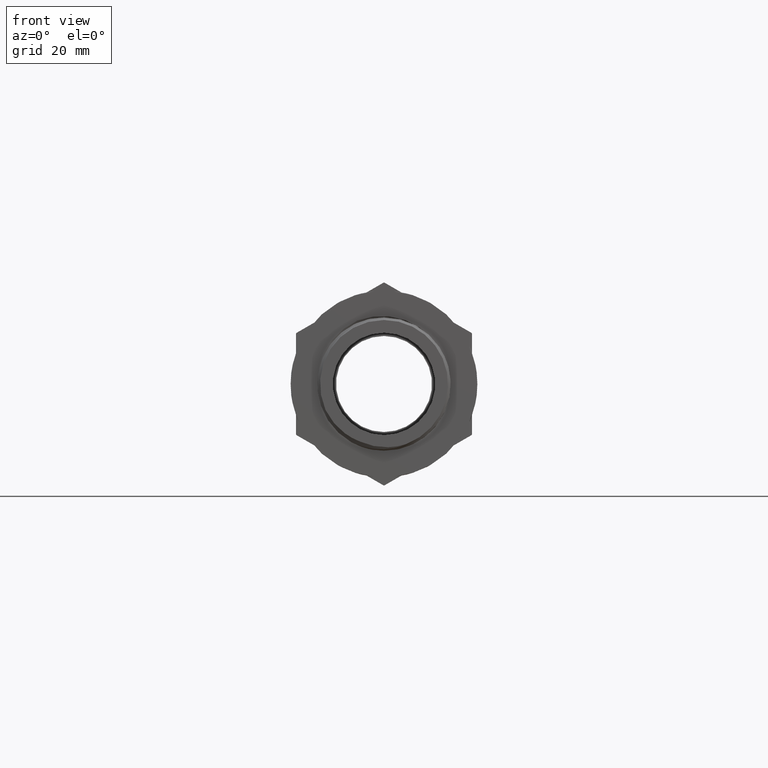
[diagram: clean part render]
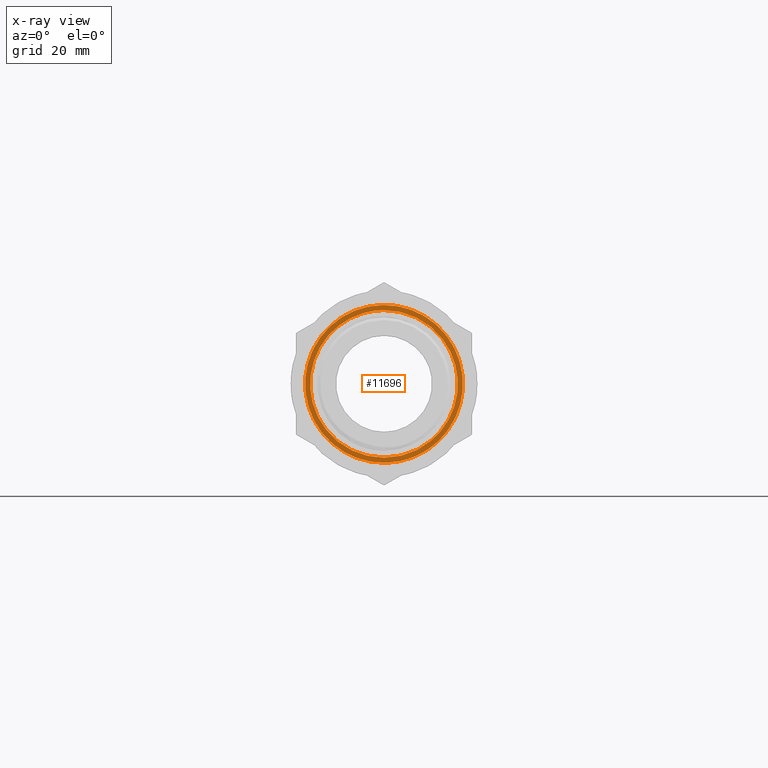
[diagram: x-ray — body ghosted, one internal face saturated and labeled with its STEP entity id]
A machine part, front view, then the same camera in x-ray: the body is ghosted and one INTERNAL B-rep face — a face not visible from any outside direction — is saturated and labeled: STEP entity #11696.
In plain terms, the highlighted face is a freeform B-spline surface patch.
Its self-contained STEP definition (entity closure, byte-faithful):
#9 = CARTESIAN_POINT ( 'NONE',  ( 0.02497313484363428500, 19.09715171309923700, 15.52483974087801700 ) ) ;
#35 = CARTESIAN_POINT ( 'NONE',  ( 3.778757447220761300E-015, 11.44786003071850200, 13.83500000000000300 ) ) ;
#50 = CARTESIAN_POINT ( 'NONE',  ( -4.252655404629582100, 11.57465171309924300, 13.16518693408775100 ) ) ;
#57 = CARTESIAN_POINT ( 'NONE',  ( 11.93117551516568900, 20.75465171309924300, -8.697864101593348000 ) ) ;
#94 = ORIENTED_EDGE ( 'NONE', *, *, #11580, .T. ) ;
#104 = CARTESIAN_POINT ( 'NONE',  ( 8.983244370699344100, 28.31015684259329700, -10.52181284647748800 ) ) ;
#113 = CARTESIAN_POINT ( 'NONE',  ( -14.77271712306950300, 22.41215171309924500, -4.773688452253506600 ) ) ;
#144 = VERTEX_POINT ( 'NONE', #35 ) ;
#174 = CARTESIAN_POINT ( 'NONE',  ( 4.585224334613575300, 24.06965171309924000, 14.03501004291564600 ) ) ;
#226 = CARTESIAN_POINT ( 'NONE',  ( 9.105068153400880600, 25.72715171309923900, -12.57453802568247000 ) ) ;
#257 = CARTESIAN_POINT ( 'NONE',  ( -1.578186933839259300E-014, 13.99786003071849700, 13.83500000000000300 ) ) ;
#274 = CARTESIAN_POINT ( 'NONE',  ( -14.76500000000000200, 27.38465171309923800, 0.02375086262535682300 ) ) ;
#320 = CARTESIAN_POINT ( 'NONE',  ( 4.282387680126129600, 8.769651713099243300, 13.10297465694639400 ) ) ;
#355 = CARTESIAN_POINT ( 'NONE',  ( 8.530283944102800200, 18.07715171309924100, -11.78341543183228300 ) ) ;
#375 = CARTESIAN_POINT ( 'NONE',  ( 8.499394844425980400, 10.42715171309924200, -11.74090023349747700 ) ) ;
#423 = CARTESIAN_POINT ( 'NONE',  ( -13.78500000000000200, 12.08465171309924300, 0.02375086262535982700 ) ) ;
#457 = CARTESIAN_POINT ( 'NONE',  ( -4.252655404629582100, 16.67465171309924100, 13.16518693408775100 ) ) ;
#480 = CARTESIAN_POINT ( 'NONE',  ( 8.539802225408619700, 13.74215171309924000, 11.71154255276826800 ) ) ;
#529 = CARTESIAN_POINT ( 'NONE',  ( 4.237210854791170400, 15.39965171309924200, -13.11765349731099500 ) ) ;
#585 = ORIENTED_EDGE ( 'NONE', *, *, #13038, .T. ) ;
#587 = CARTESIAN_POINT ( 'NONE',  ( -13.77728287693050300, 17.05715171309924500, 4.502768875195972200 ) ) ;
#598 = CARTESIAN_POINT ( 'NONE',  ( 2.203423730064592700, 16.48214782584075200, 13.83499999999999900 ) ) ;
#619 = CARTESIAN_POINT ( 'NONE',  ( 2.311710438299760300E-014, 19.09786003071849300, 13.83500000000000300 ) ) ;
#620 = CARTESIAN_POINT ( 'NONE',  ( 1.400363053970046900E-014, 15.27286003071850100, -13.83500000000000300 ) ) ;
#630 = CARTESIAN_POINT ( 'NONE',  ( 11.16625967423906300, 18.71465171309924000, 8.083404851356762700 ) ) ;
#634 = CARTESIAN_POINT ( 'NONE',  ( 13.83497961315897800, 23.55965171309923900, -0.02375086262535797800 ) ) ;
#642 = CARTESIAN_POINT ( 'NONE',  ( 1.400363053970046900E-014, 15.27286003071850100, -13.83500000000000300 ) ) ;
#657 = VERTEX_POINT ( 'NONE', #6986 ) ;
#680 = CARTESIAN_POINT ( 'NONE',  ( -0.02497313484363923600, 20.37215171309924200, -14.49440676112451600 ) ) ;
#695 = CARTESIAN_POINT ( 'NONE',  ( -14.75728287693050200, 9.407151713099242600, 4.821190177504218100 ) ) ;
#736 = CARTESIAN_POINT ( 'NONE',  ( -11.13833886067823900, 22.02965171309924500, 8.121834554346724700 ) ) ;
#742 = CARTESIAN_POINT ( 'NONE',  ( -2.489534318168972600E-014, 28.02286003071849800, -13.83500000000000300 ) ) ;
#750 = CARTESIAN_POINT ( 'NONE',  ( 11.95909632872650800, 11.06465171309924300, 8.659434398603391300 ) ) ;
#771 = CARTESIAN_POINT ( 'NONE',  ( -13.82726249008947900, 14.50715171309924200, 4.519008235921425900 ) ) ;
#789 = CARTESIAN_POINT ( 'NONE',  ( 13.79271712306950300, 23.68715171309924000, 4.455267149945256300 ) ) ;
#804 = CARTESIAN_POINT ( 'NONE',  ( -0.02497313484363615200, 12.72215171309924000, -15.52483974087801700 ) ) ;
#805 = CARTESIAN_POINT ( 'NONE',  ( 6.881907256851920200, 28.22801981076478100, -12.31587866710563400 ) ) ;
#840 = CARTESIAN_POINT ( 'NONE',  ( -2.179077043676691500, 24.26284614990416000, 13.83500000000000400 ) ) ;
#843 = CARTESIAN_POINT ( 'NONE',  ( -4.282387680126131400, 25.34465171309924300, -13.10297465694639400 ) ) ;
#854 = EDGE_CURVE ( 'NONE', #13121, #10841, #5767, .T. ) ;
#889 = CARTESIAN_POINT ( 'NONE',  ( -8.499394844425982100, 27.00215171309924100, 11.74090023349747500 ) ) ;
#925 = CARTESIAN_POINT ( 'NONE',  ( -2.179077043676672000, 19.16284614990415500, 13.83500000000000800 ) ) ;
#973 = CARTESIAN_POINT ( 'NONE',  ( 2.179077043676689800, 25.53784614990415800, -13.83500000000000400 ) ) ;
#1055 = CARTESIAN_POINT ( 'NONE',  ( -11.93117551516568900, 14.37965171309924300, 8.697864101593346200 ) ) ;
#1066 = CARTESIAN_POINT ( 'NONE',  ( -2.489534318168972600E-014, 22.92286003071849600, -13.83500000000000300 ) ) ;
#1070 = CARTESIAN_POINT ( 'NONE',  ( 13.83497961315897800, 10.80965171309924200, -0.02375086262535797800 ) ) ;
#1111 = CARTESIAN_POINT ( 'NONE',  ( 14.77271712306950300, 16.03715171309924200, 4.773688452253508400 ) ) ;
#1146 = CARTESIAN_POINT ( 'NONE',  ( -11.17877321709614000, 22.02965171309924500, 8.151211833876855600 ) ) ;
#1162 = CARTESIAN_POINT ( 'NONE',  ( -4.585224334613577000, 17.69465171309924000, -14.03501004291564600 ) ) ;
#1182 = CARTESIAN_POINT ( 'NONE',  ( -11.17877321709614000, 27.12965171309923900, 8.151211833876855600 ) ) ;
#1209 = CARTESIAN_POINT ( 'NONE',  ( 9.588331980910700400, 28.31015684259329400, -11.22807547745029500 ) ) ;
#1212 = CARTESIAN_POINT ( 'NONE',  ( -9.105068153400882400, 19.35215171309923600, 12.57453802568246800 ) ) ;
#1224 = CARTESIAN_POINT ( 'NONE',  ( 7.345945420523952900, 28.22801981076478500, -13.14298483245963900 ) ) ;
#1257 = CARTESIAN_POINT ( 'NONE',  ( 3.778757447220761300E-015, 11.44786003071850200, 13.83500000000000300 ) ) ;
#1264 = CARTESIAN_POINT ( 'NONE',  ( 14.76500000000000200, 21.00965171309924500, -0.02375086262535501900 ) ) ;
#1322 = CARTESIAN_POINT ( 'NONE',  ( -9.145475534383516300, 22.66715171309924800, -12.54518034495327000 ) ) ;
#1372 = CARTESIAN_POINT ( 'NONE',  ( -4.540047509278624100, 24.32465171309924300, 14.04968888328024500 ) ) ;
#1427 = CARTESIAN_POINT ( 'NONE',  ( 14.75728287693049800, 25.98215171309923800, -4.821190177504219900 ) ) ;
#1458 = CARTESIAN_POINT ( 'NONE',  ( 4.297832229964539500, 13.86965171309924300, 13.15050809372315000 ) ) ;
#1479 = CARTESIAN_POINT ( 'NONE',  ( -11.95909632872650800, 27.63965171309924100, -8.659434398603389500 ) ) ;
#1515 = CARTESIAN_POINT ( 'NONE',  ( 2.311710438299760300E-014, 19.09786003071849300, 13.83500000000000300 ) ) ;
#1533 = CARTESIAN_POINT ( 'NONE',  ( -4.237210854791172200, 9.024651713099242300, 13.11765349731099500 ) ) ;
#1567 = CARTESIAN_POINT ( 'NONE',  ( 2.179077043676689800, 17.88784614990416000, -13.83500000000000400 ) ) ;
#1589 = CARTESIAN_POINT ( 'NONE',  ( 13.77728287693050300, 10.68215171309924100, -4.502768875195974900 ) ) ;
#1637 = CARTESIAN_POINT ( 'NONE',  ( -11.16625967423906300, 12.33965171309924400, -8.083404851356762700 ) ) ;
#1645 =( BOUNDED_CURVE ( )  B_SPLINE_CURVE ( 1, ( #2267, #6911 ),
 .UNSPECIFIED., .F., .F. ) 
 B_SPLINE_CURVE_WITH_KNOTS ( ( 2, 2 ),
 ( 4.997961315897787300E-005, 0.0009800000000000006200 ),
 .UNSPECIFIED. ) 
 CURVE ( )  GEOMETRIC_REPRESENTATION_ITEM ( )  RATIONAL_B_SPLINE_CURVE ( ( 0.9855647492024592900, 0.9855647492024592900 ) ) 
 REPRESENTATION_ITEM ( '' )  );
#1668 = CARTESIAN_POINT ( 'NONE',  ( -1.578186933839259300E-014, 16.54786003071850000, 13.83500000000000300 ) ) ;
#1692 = CARTESIAN_POINT ( 'NONE',  ( 0.02497313484363749800, 13.99715171309924100, 14.49440676112451600 ) ) ;
#1732 = CARTESIAN_POINT ( 'NONE',  ( -4.252655404629582100, 19.22465171309924200, 13.16518693408775100 ) ) ;
#1746 = CARTESIAN_POINT ( 'NONE',  ( 11.13833886067823900, 15.65465171309924100, -8.121834554346726500 ) ) ;
#1799 = CARTESIAN_POINT ( 'NONE',  ( -13.79271712306950300, 17.31215171309923300, -4.455267149945255400 ) ) ;
#1809 = CARTESIAN_POINT ( 'NONE',  ( -1.578186933839259300E-014, 16.54786003071850000, 13.83500000000000300 ) ) ;
#1847 = B_SPLINE_CURVE_WITH_KNOTS ( 'NONE', 3,
 ( #9315, #3489, #4675, #12622 ),
 .UNSPECIFIED., .F., .F.,
 ( 4, 4 ),
 ( 0.05099960526425947900, 1.000000000000000000 ),
 .UNSPECIFIED. ) ;
#1849 = CARTESIAN_POINT ( 'NONE',  ( 4.282387680126129600, 18.96965171309924300, 13.10297465694639400 ) ) ;
#1851 = CARTESIAN_POINT ( 'NONE',  ( 11.17877321709614000, 23.30465171309924300, -8.151211833876857300 ) ) ;
#1905 = CARTESIAN_POINT ( 'NONE',  ( 8.499394844425980400, 20.62715171309924500, -11.74090023349747700 ) ) ;
#1917 = CARTESIAN_POINT ( 'NONE',  ( -14.77271712306950300, 9.662151713099239800, -4.773688452253506600 ) ) ;
#1951 = CARTESIAN_POINT ( 'NONE',  ( -13.78500000000000200, 22.28465171309924000, 0.02375086262535982700 ) ) ;
#1970 = CARTESIAN_POINT ( 'NONE',  ( 4.585224334613575300, 11.31965171309924200, 14.03501004291564600 ) ) ;
#1986 = CARTESIAN_POINT ( 'NONE',  ( -8.530283944102802000, 14.25215171309924100, 11.78341543183228200 ) ) ;
#1997 = CARTESIAN_POINT ( 'NONE',  ( -2.203423730064594000, 25.40714782584075200, -13.83499999999999900 ) ) ;
#2001 = CARTESIAN_POINT ( 'NONE',  ( 8.539802225408619700, 23.94215171309923600, 11.71154255276826800 ) ) ;
#2015 = CARTESIAN_POINT ( 'NONE',  ( 9.105068153400880600, 12.97715171309923900, -12.57453802568247000 ) ) ;
#2036 = CARTESIAN_POINT ( 'NONE',  ( -8.530283944102802000, 19.35215171309923600, 11.78341543183228200 ) ) ;
#2050 = CARTESIAN_POINT ( 'NONE',  ( 4.237210854791170400, 25.59965171309924200, -13.11765349731099500 ) ) ;
#2087 = CARTESIAN_POINT ( 'NONE',  ( -11.17877321709614000, 19.47965171309924100, 8.151211833876855600 ) ) ;
#2096 = CARTESIAN_POINT ( 'NONE',  ( 8.570691325085441300, 21.39215171309923800, 11.75405775110307800 ) ) ;
#2098 = CARTESIAN_POINT ( 'NONE',  ( -13.77728287693050300, 27.25715171309924000, 4.502768875195972200 ) ) ;
#2099 = ORIENTED_EDGE ( 'NONE', *, *, #2407, .T. ) ;
#2100 = VERTEX_POINT ( 'NONE', #104 ) ;
#2139 = CARTESIAN_POINT ( 'NONE',  ( -13.82726249008947900, 19.60715171309923800, 4.519008235921425900 ) ) ;
#2140 = CARTESIAN_POINT ( 'NONE',  ( 2.203423730064592700, 26.68214782584075100, 13.83499999999999900 ) ) ;
#2222 = CARTESIAN_POINT ( 'NONE',  ( 2.311710438299760300E-014, 26.74786003071849900, 13.83500000000000300 ) ) ;
#2263 = CARTESIAN_POINT ( 'NONE',  ( -14.76500000000000200, 14.63465171309924200, 0.02375086262535682300 ) ) ;
#2267 = CARTESIAN_POINT ( 'NONE',  ( -5.740539895801662200, 9.999999999999994700, -12.58782851427161200 ) ) ;
#2274 = CARTESIAN_POINT ( 'NONE',  ( 11.17877321709614000, 10.55465171309924300, -8.151211833876857300 ) ) ;
#2292 = CARTESIAN_POINT ( 'NONE',  ( 4.223317146893793000E-015, 10.17286003071850500, -13.83500000000000400 ) ) ;
#2301 = CARTESIAN_POINT ( 'NONE',  ( -2.203423730064594000, 22.85714782584074800, -13.83499999999999900 ) ) ;
#2306 =( BOUNDED_CURVE ( )  B_SPLINE_CURVE ( 2, ( #4883, #11719, #2531, #12819, #6055 ),
 .UNSPECIFIED., .F., .F. ) 
 B_SPLINE_CURVE_WITH_KNOTS ( ( 3, 2, 3 ),
 ( 0.8890469669045115700, 0.8953308386869839300, 0.8975782724565334300 ),
 .UNSPECIFIED. ) 
 CURVE ( )  GEOMETRIC_REPRESENTATION_ITEM ( )  RATIONAL_B_SPLINE_CURVE ( ( 0.9755289769026965800, 0.9753956339048974700, 1.000000000000000000, 0.9912002209537866800, 0.9855647492024588500 ) ) 
 REPRESENTATION_ITEM ( '' )  );
#2313 = CARTESIAN_POINT ( 'NONE',  ( 9.145475534383514600, 16.29215171309924100, 12.54518034495327200 ) ) ;
#2320 = EDGE_CURVE ( 'NONE', #10282, #14126, #10895, .T. ) ;
#2346 = CARTESIAN_POINT ( 'NONE',  ( -4.252655404629582100, 21.77465171309924200, 13.16518693408775100 ) ) ;
#2361 = CARTESIAN_POINT ( 'NONE',  ( 4.540047509278622300, 17.94965171309924300, -14.04968888328024500 ) ) ;
#2380 = CARTESIAN_POINT ( 'NONE',  ( -4.252655404629582100, 26.87465171309924400, 13.16518693408775100 ) ) ;
#2400 = VERTEX_POINT ( 'NONE', #11278 ) ;
#2407 = EDGE_CURVE ( 'NONE', #12415, #14656, #8298, .T. ) ;
#2409 = CARTESIAN_POINT ( 'NONE',  ( -14.75728287693050200, 19.60715171309923800, 4.821190177504218100 ) ) ;
#2453 =( BOUNDED_CURVE ( )  B_SPLINE_CURVE ( 2, ( #6634, #1997, #3147, #11196, #4346, #12307, #5490, #13411, #6686, #14515, #7855, #840, #9031 ),
 .UNSPECIFIED., .F., .F. ) 
 B_SPLINE_CURVE_WITH_KNOTS ( ( 3, 2, 2, 2, 2, 2, 3 ),
 ( 0.1390469669045115700, 0.1453308386869839300, 0.1578308386869840000, 0.1703308386869839500, 0.1828308386869839100, 0.1953308386869839800, 0.2015469669045115700 ),
 .UNSPECIFIED. ) 
 CURVE ( )  GEOMETRIC_REPRESENTATION_ITEM ( )  RATIONAL_B_SPLINE_CURVE ( ( 0.9755289769026965800, 0.9753956339048974700, 1.000000000000000000, 0.9510565162951535300, 1.000000000000000000, 0.9510565162951535300, 1.000000000000000000, 0.9510565162951535300, 1.000000000000000000, 0.9510565162951535300, 1.000000000000000000, 0.9756608823902560600, 0.9755289769026965800 ) ) 
 REPRESENTATION_ITEM ( '' )  );
#2463 = CARTESIAN_POINT ( 'NONE',  ( 11.95909632872650800, 21.26465171309924100, 8.659434398603391300 ) ) ;
#2485 = ORIENTED_EDGE ( 'NONE', *, *, #6474, .T. ) ;
#2515 = CARTESIAN_POINT ( 'NONE',  ( -0.02497313484363615200, 22.92215171309924000, -15.52483974087801700 ) ) ;
#2531 = CARTESIAN_POINT ( 'NONE',  ( -4.297832229964541300, 10.04465171309924400, -13.15050809372315000 ) ) ;
#2555 = CARTESIAN_POINT ( 'NONE',  ( -11.93117551516568900, 24.57965171309924200, 8.697864101593346200 ) ) ;
#2607 = CARTESIAN_POINT ( 'NONE',  ( 14.77271712306950300, 26.23715171309923700, 4.773688452253508400 ) ) ;
#2638 = CARTESIAN_POINT ( 'NONE',  ( 11.20669403065696200, 13.61465171309924200, 8.112782130886893500 ) ) ;
#2654 = CARTESIAN_POINT ( 'NONE',  ( -4.585224334613577000, 27.89465171309924000, -14.03501004291564600 ) ) ;
#2702 = CARTESIAN_POINT ( 'NONE',  ( -11.13833886067823900, 9.279651713099243100, 8.121834554346724700 ) ) ;
#2749 = CARTESIAN_POINT ( 'NONE',  ( 13.79271712306950300, 10.93715171309924400, 4.455267149945256300 ) ) ;
#2783 = CARTESIAN_POINT ( 'NONE',  ( -2.203423730064594000, 17.75714782584074700, -13.83499999999999900 ) ) ;
#2804 = CARTESIAN_POINT ( 'NONE',  ( -4.282387680126131400, 12.59465171309924300, -13.10297465694639400 ) ) ;
#2839 = CARTESIAN_POINT ( 'NONE',  ( -13.83497961315897800, 19.73465171309924300, 0.02375086262535967500 ) ) ;
#2855 = ORIENTED_EDGE ( 'NONE', *, *, #6058, .T. ) ;
#2856 = CARTESIAN_POINT ( 'NONE',  ( -8.499394844425982100, 14.25215171309924300, 11.74090023349747500 ) ) ;
#2886 = CARTESIAN_POINT ( 'NONE',  ( -2.489534318168972600E-014, 20.37286003071849900, -13.83500000000000300 ) ) ;
#2905 = CARTESIAN_POINT ( 'NONE',  ( 13.78500000000000200, 15.90965171309924400, -0.02375086262535813400 ) ) ;
#2916 = FACE_OUTER_BOUND ( 'NONE', #10344, .T. ) ;
#2941 = CARTESIAN_POINT ( 'NONE',  ( -13.84269673622848100, 19.86215171309923400, -4.471506510670708100 ) ) ;
#2953 = CARTESIAN_POINT ( 'NONE',  ( -8.539802225408623200, 17.56715171309923600, -11.71154255276826800 ) ) ;
#2962 = CARTESIAN_POINT ( 'NONE',  ( 8.570691325085441300, 16.29215171309924100, 11.75405775110307800 ) ) ;
#2990 = CARTESIAN_POINT ( 'NONE',  ( -11.20669403065696200, 19.98965171309924200, -8.112782130886893500 ) ) ;
#3001 = CARTESIAN_POINT ( 'NONE',  ( -4.237210854791172200, 19.22465171309924200, 13.11765349731099500 ) ) ;
#3007 = CARTESIAN_POINT ( 'NONE',  ( 4.252655404629580400, 23.04965171309924100, -13.16518693408775100 ) ) ;
#3052 = CARTESIAN_POINT ( 'NONE',  ( 13.77728287693050300, 20.88215171309924000, -4.502768875195974900 ) ) ;
#3066 = CARTESIAN_POINT ( 'NONE',  ( -9.145475534383516300, 9.917151713099244100, -12.54518034495327000 ) ) ;
#3098 = CARTESIAN_POINT ( 'NONE',  ( -11.16625967423906300, 22.53965171309923900, -8.083404851356762700 ) ) ;
#3111 = CARTESIAN_POINT ( 'NONE',  ( -4.540047509278624100, 11.57465171309924300, 14.04968888328024500 ) ) ;
#3132 = CARTESIAN_POINT ( 'NONE',  ( -2.179077043676691500, 14.06284614990415900, 13.83500000000000400 ) ) ;
#3147 = CARTESIAN_POINT ( 'NONE',  ( -4.297832229964541300, 25.34465171309924300, -13.15050809372315000 ) ) ;
#3151 = CARTESIAN_POINT ( 'NONE',  ( 0.02497313484363749800, 24.19715171309923500, 14.49440676112451600 ) ) ;
#3163 = CARTESIAN_POINT ( 'NONE',  ( 14.75728287693049800, 13.23215171309924200, -4.821190177504219900 ) ) ;
#3164 = CARTESIAN_POINT ( 'NONE',  ( 4.252655404629580400, 28.14965171309924200, -13.16518693408775100 ) ) ;
#3187 = CARTESIAN_POINT ( 'NONE',  ( -8.570691325085444800, 20.11715171309924000, -11.75405775110307600 ) ) ;
#3200 = CARTESIAN_POINT ( 'NONE',  ( 11.13833886067823900, 25.85465171309923700, -8.121834554346726500 ) ) ;
#3236 = CARTESIAN_POINT ( 'NONE',  ( -2.489534318168972600E-014, 20.37286003071849900, -13.83500000000000300 ) ) ;
#3246 = CARTESIAN_POINT ( 'NONE',  ( 13.84269673622848100, 21.13715171309923900, 4.471506510670709000 ) ) ;
#3248 = CARTESIAN_POINT ( 'NONE',  ( -13.79271712306950300, 27.51215171309924300, -4.455267149945255400 ) ) ;
#3261 = CARTESIAN_POINT ( 'NONE',  ( -14.75728287693050200, 17.05715171309924100, 4.821190177504218100 ) ) ;
#3265 = CARTESIAN_POINT ( 'NONE',  ( -11.93117551516568900, 16.92965171309924300, 8.697864101593346200 ) ) ;
#3280 = CARTESIAN_POINT ( 'NONE',  ( -9.105068153400880600, 16.80215171309924200, 12.57453802568247000 ) ) ;
#3283 = CARTESIAN_POINT ( 'NONE',  ( 2.311710438299760300E-014, 26.74786003071849900, 13.83500000000000300 ) ) ;
#3356 = CARTESIAN_POINT ( 'NONE',  ( -8.570691325085444800, 12.46715171309924100, -11.75405775110307600 ) ) ;
#3418 = CARTESIAN_POINT ( 'NONE',  ( -11.95909632872650800, 14.88965171309924300, -8.659434398603389500 ) ) ;
#3426 = CARTESIAN_POINT ( 'NONE',  ( 4.252655404629580400, 10.29965171309924300, -13.16518693408775100 ) ) ;
#3465 = CARTESIAN_POINT ( 'NONE',  ( 0.02497313484363428500, 16.54715171309924300, 15.52483974087801700 ) ) ;
#3486 = CARTESIAN_POINT ( 'NONE',  ( -2.203423730064594000, 27.95714782584075000, -13.83499999999999900 ) ) ;
#3489 = CARTESIAN_POINT ( 'NONE',  ( 9.184940240769815700, 28.31015684259330100, -10.75723372346840100 ) ) ;
#3506 = CARTESIAN_POINT ( 'NONE',  ( 2.311710438299760300E-014, 21.64786003071849400, 13.83500000000000300 ) ) ;
#3519 = CARTESIAN_POINT ( 'NONE',  ( 11.93117551516568900, 18.20465171309924200, -8.697864101593348000 ) ) ;
#3539 = CARTESIAN_POINT ( 'NONE',  ( 2.311710438299760300E-014, 26.74786003071849900, 13.83500000000000300 ) ) ;
#3568 = CARTESIAN_POINT ( 'NONE',  ( -14.77271712306950300, 19.86215171309923400, -4.773688452253506600 ) ) ;
#3622 = CARTESIAN_POINT ( 'NONE',  ( 4.585224334613575300, 21.51965171309924000, 14.03501004291564600 ) ) ;
#3658 = CARTESIAN_POINT ( 'NONE',  ( 4.540047509278622300, 28.14965171309924200, -14.04968888328024500 ) ) ;
#3674 = CARTESIAN_POINT ( 'NONE',  ( -0.02497313484363613100, 28.02215171309923700, -15.52483974087801700 ) ) ;
#3677 = CARTESIAN_POINT ( 'NONE',  ( 9.105068153400880600, 23.17715171309923900, -12.57453802568247000 ) ) ;
#3679 = CARTESIAN_POINT ( 'NONE',  ( -4.585224334613576100, 27.89465171309924000, -14.03501004291564600 ) ) ;
#3692 = CARTESIAN_POINT ( 'NONE',  ( -9.145475534383516300, 27.76715171309923500, -12.54518034495327000 ) ) ;
#3698 = CARTESIAN_POINT ( 'NONE',  ( -11.95909632872650800, 27.63965171309924100, -8.659434398603389500 ) ) ;
#3715 = CARTESIAN_POINT ( 'NONE',  ( -14.77271712306950300, 27.51215171309924300, -4.773688452253506600 ) ) ;
#3738 = CARTESIAN_POINT ( 'NONE',  ( -14.76500000000000200, 24.83465171309923700, 0.02375086262535682300 ) ) ;
#3739 = CARTESIAN_POINT ( 'NONE',  ( -14.76500000000000200, 27.38465171309923800, 0.02375086262535681300 ) ) ;
#3769 = CARTESIAN_POINT ( 'NONE',  ( -14.75728287693050200, 27.25715171309924000, 4.821190177504218100 ) ) ;
#3783 = CARTESIAN_POINT ( 'NONE',  ( -11.93117551516568900, 27.12965171309923900, 8.697864101593346200 ) ) ;
#3785 = CARTESIAN_POINT ( 'NONE',  ( 9.145475534383514600, 26.49215171309923300, 12.54518034495327200 ) ) ;
#3804 = CARTESIAN_POINT ( 'NONE',  ( -9.105068153400880600, 27.00215171309924100, 12.57453802568247000 ) ) ;
#3817 = CARTESIAN_POINT ( 'NONE',  ( 13.83497961315897800, 13.35965171309924300, -0.02375086262535797800 ) ) ;
#3818 = CARTESIAN_POINT ( 'NONE',  ( -4.540047509278624100, 26.87465171309924400, 14.04968888328024500 ) ) ;
#3835 = CARTESIAN_POINT ( 'NONE',  ( 4.540047509278622300, 28.14965171309924200, -14.04968888328024500 ) ) ;
#3852 = CARTESIAN_POINT ( 'NONE',  ( 0.02497313484363426400, 26.74715171309923900, 15.52483974087801700 ) ) ;
#3871 = CARTESIAN_POINT ( 'NONE',  ( 4.297832229964539500, 18.96965171309924300, 13.15050809372315000 ) ) ;
#3874 = CARTESIAN_POINT ( 'NONE',  ( 4.585224334613574400, 26.61965171309924100, 14.03501004291564600 ) ) ;
#3888 = CARTESIAN_POINT ( 'NONE',  ( 9.145475534383514600, 26.49215171309923300, 12.54518034495327200 ) ) ;
#3891 = CARTESIAN_POINT ( 'NONE',  ( -13.78500000000000200, 9.534651713099242100, 0.02375086262535982700 ) ) ;
#3897 =( BOUNDED_CURVE ( )  B_SPLINE_CURVE ( 2, ( #8998, #805, #3164, #11214, #4358 ),
 .UNSPECIFIED., .F., .F. ) 
 B_SPLINE_CURVE_WITH_KNOTS ( ( 3, 2, 3 ),
 ( 0.0000000000000000000, 0.007830838686983976300, 0.01404696690451157100 ),
 .UNSPECIFIED. ) 
 CURVE ( )  GEOMETRIC_REPRESENTATION_ITEM ( )  RATIONAL_B_SPLINE_CURVE ( ( 0.9770938550711947300, 0.9693385179462656900, 1.000000000000000000, 0.9756608823902560600, 0.9755289769026965800 ) ) 
 REPRESENTATION_ITEM ( '' )  );
#3904 = CARTESIAN_POINT ( 'NONE',  ( 11.95909632872650800, 26.36465171309924200, 8.659434398603391300 ) ) ;
#3908 = CARTESIAN_POINT ( 'NONE',  ( 14.77271712306950300, 26.23715171309923700, 4.773688452253508400 ) ) ;
#3925 = CARTESIAN_POINT ( 'NONE',  ( 14.76500000000000200, 26.10965171309924000, -0.02375086262535500500 ) ) ;
#3936 = CARTESIAN_POINT ( 'NONE',  ( 14.75728287693049800, 25.98215171309923800, -4.821190177504219900 ) ) ;
#3940 = CARTESIAN_POINT ( 'NONE',  ( 8.539802225408619700, 11.19215171309924300, 11.71154255276826800 ) ) ;
#3942 = CARTESIAN_POINT ( 'NONE',  ( 11.93117551516568900, 25.85465171309923700, -8.697864101593348000 ) ) ;
#3955 = CARTESIAN_POINT ( 'NONE',  ( 9.105068153400878800, 25.72715171309923900, -12.57453802568247200 ) ) ;
#3961 = CARTESIAN_POINT ( 'NONE',  ( 4.540047509278622300, 25.59965171309924200, -14.04968888328024500 ) ) ;
#3973 = CARTESIAN_POINT ( 'NONE',  ( -8.570691325085444800, 17.56715171309923900, -11.75405775110307600 ) ) ;
#3980 = CARTESIAN_POINT ( 'NONE',  ( -0.02497313484363613100, 25.47215171309924000, -15.52483974087801700 ) ) ;
#3994 = CARTESIAN_POINT ( 'NONE',  ( 4.237210854791170400, 12.84965171309924300, -13.11765349731099500 ) ) ;
#3995 = CARTESIAN_POINT ( 'NONE',  ( -4.585224334613576100, 25.34465171309924300, -14.03501004291564600 ) ) ;
#4009 = CARTESIAN_POINT ( 'NONE',  ( -9.145475534383516300, 25.21715171309924100, -12.54518034495327000 ) ) ;
#4042 = CARTESIAN_POINT ( 'NONE',  ( -13.77728287693050300, 14.50715171309924200, 4.502768875195972200 ) ) ;
#4044 = CARTESIAN_POINT ( 'NONE',  ( -11.95909632872650800, 25.08965171309924000, -8.659434398603389500 ) ) ;
#4060 = CARTESIAN_POINT ( 'NONE',  ( -14.77271712306950300, 24.96215171309924200, -4.773688452253506600 ) ) ;
#4093 = CARTESIAN_POINT ( 'NONE',  ( -14.76500000000000200, 24.83465171309923700, 0.02375086262535681300 ) ) ;
#4097 = CARTESIAN_POINT ( 'NONE',  ( 11.16625967423906300, 16.16465171309924300, 8.083404851356762700 ) ) ;
#4098 = CARTESIAN_POINT ( 'NONE',  ( -14.75728287693050200, 24.70715171309924300, 4.821190177504218100 ) ) ;
#4111 = CARTESIAN_POINT ( 'NONE',  ( -11.93117551516568900, 24.57965171309924200, 8.697864101593346200 ) ) ;
#4115 = CARTESIAN_POINT ( 'NONE',  ( -9.105068153400880600, 24.45215171309923700, 12.57453802568247000 ) ) ;
#4133 = CARTESIAN_POINT ( 'NONE',  ( -4.540047509278624100, 24.32465171309924300, 14.04968888328024500 ) ) ;
#4148 = VERTEX_POINT ( 'NONE', #742 ) ;
#4152 = CARTESIAN_POINT ( 'NONE',  ( -0.02497313484363923600, 17.82215171309923800, -14.49440676112451600 ) ) ;
#4156 = CARTESIAN_POINT ( 'NONE',  ( 2.311710438299760300E-014, 24.19786003071849800, 13.83500000000000300 ) ) ;
#4161 = CARTESIAN_POINT ( 'NONE',  ( 13.84269673622848100, 16.03715171309924200, 4.471506510670709000 ) ) ;
#4170 = CARTESIAN_POINT ( 'NONE',  ( 0.02497313484363426400, 24.19715171309923500, 15.52483974087801700 ) ) ;
#4197 = CARTESIAN_POINT ( 'NONE',  ( -11.13833886067823900, 19.47965171309924100, 8.121834554346724700 ) ) ;
#4198 = CARTESIAN_POINT ( 'NONE',  ( 4.585224334613574400, 24.06965171309924000, 14.03501004291564600 ) ) ;
#4201 = CARTESIAN_POINT ( 'NONE',  ( -2.489534318168972600E-014, 22.92286003071849600, -13.83500000000000300 ) ) ;
#4209 = CARTESIAN_POINT ( 'NONE',  ( 11.95909632872650800, 8.514651713099242500, 8.659434398603391300 ) ) ;
#4211 = CARTESIAN_POINT ( 'NONE',  ( 9.145475534383514600, 23.94215171309923900, 12.54518034495327200 ) ) ;
#4214 = CARTESIAN_POINT ( 'NONE',  ( 11.95909632872650800, 23.81465171309923800, 8.659434398603391300 ) ) ;
#4229 = CARTESIAN_POINT ( 'NONE',  ( 14.77271712306950300, 23.68715171309924000, 4.773688452253508400 ) ) ;
#4248 = CARTESIAN_POINT ( 'NONE',  ( 13.79271712306950300, 21.13715171309923900, 4.455267149945256300 ) ) ;
#4263 = CARTESIAN_POINT ( 'NONE',  ( -0.02497313484363615200, 10.17215171309924500, -15.52483974087801700 ) ) ;
#4265 = CARTESIAN_POINT ( 'NONE',  ( 14.76500000000000200, 23.55965171309923900, -0.02375086262535500500 ) ) ;
#4281 = CARTESIAN_POINT ( 'NONE',  ( 1.400363053970046900E-014, 15.27286003071850100, -13.83500000000000300 ) ) ;
#4298 = CARTESIAN_POINT ( 'NONE',  ( -4.282387680126131400, 22.79465171309924200, -13.10297465694639400 ) ) ;
#4313 = EDGE_CURVE ( 'NONE', #657, #144, #5382, .T. ) ;
#4314 = CARTESIAN_POINT ( 'NONE',  ( -11.93117551516568900, 11.82965171309924200, 8.697864101593346200 ) ) ;
#4319 = CARTESIAN_POINT ( 'NONE',  ( 14.75728287693049800, 23.43215171309924100, -4.821190177504219900 ) ) ;
#4346 = CARTESIAN_POINT ( 'NONE',  ( -11.20669403065696200, 25.08965171309924000, -8.112782130886893500 ) ) ;
#4349 = CARTESIAN_POINT ( 'NONE',  ( -8.499394844425982100, 24.45215171309924100, 11.74090023349747500 ) ) ;
#4358 = CARTESIAN_POINT ( 'NONE',  ( -2.489534318168972600E-014, 28.02286003071849800, -13.83500000000000300 ) ) ;
#4360 = CARTESIAN_POINT ( 'NONE',  ( 11.93117551516568900, 23.30465171309924300, -8.697864101593348000 ) ) ;
#4386 = CARTESIAN_POINT ( 'NONE',  ( 13.78500000000000200, 26.10965171309924000, -0.02375086262535813400 ) ) ;
#4388 = CARTESIAN_POINT ( 'NONE',  ( 9.105068153400878800, 23.17715171309923900, -12.57453802568247200 ) ) ;
#4433 = CARTESIAN_POINT ( 'NONE',  ( 13.82726249008947800, 20.88215171309924000, -4.519008235921427600 ) ) ;
#4436 = CARTESIAN_POINT ( 'NONE',  ( -8.539802225408623200, 27.76715171309923800, -11.71154255276826800 ) ) ;
#4450 = CARTESIAN_POINT ( 'NONE',  ( 4.540047509278622300, 23.04965171309924100, -14.04968888328024500 ) ) ;
#4469 = CARTESIAN_POINT ( 'NONE',  ( 11.20669403065696200, 26.36465171309924200, 8.112782130886893500 ) ) ;
#4503 = CARTESIAN_POINT ( 'NONE',  ( -0.02497313484363613100, 22.92215171309924000, -15.52483974087801700 ) ) ;
#4510 =( BOUNDED_CURVE ( )  B_SPLINE_CURVE ( 2, ( #11423, #12522, #13625, #6919, #14739, #8083, #1070, #9259, #2274, #10338, #3426, #11470, #4617 ),
 .UNSPECIFIED., .F., .F. ) 
 B_SPLINE_CURVE_WITH_KNOTS ( ( 3, 2, 2, 2, 2, 2, 3 ),
 ( 0.8265469669045115700, 0.8328308386869839300, 0.8453308386869840000, 0.8578308386869839500, 0.8703308386869839100, 0.8828308386869839800, 0.8890469669045115700 ),
 .UNSPECIFIED. ) 
 CURVE ( )  GEOMETRIC_REPRESENTATION_ITEM ( )  RATIONAL_B_SPLINE_CURVE ( ( 0.9755289769026965800, 0.9753956339048974700, 1.000000000000000000, 0.9510565162951535300, 1.000000000000000000, 0.9510565162951535300, 1.000000000000000000, 0.9510565162951535300, 1.000000000000000000, 0.9510565162951535300, 1.000000000000000000, 0.9756608823902560600, 0.9755289769026965800 ) ) 
 REPRESENTATION_ITEM ( '' )  );
#4535 = CARTESIAN_POINT ( 'NONE',  ( -4.585224334613576100, 22.79465171309924200, -14.03501004291564600 ) ) ;
#4540 = CARTESIAN_POINT ( 'NONE',  ( -13.84269673622848100, 12.21215171309924200, -4.471506510670708100 ) ) ;
#4547 = CARTESIAN_POINT ( 'NONE',  ( -9.145475534383516300, 22.66715171309924800, -12.54518034495327000 ) ) ;
#4551 = CARTESIAN_POINT ( 'NONE',  ( -11.95909632872650800, 22.53965171309923900, -8.659434398603389500 ) ) ;
#4555 = CARTESIAN_POINT ( 'NONE',  ( 14.77271712306950300, 13.48715171309924300, 4.773688452253508400 ) ) ;
#4598 = CARTESIAN_POINT ( 'NONE',  ( -14.77271712306950300, 22.41215171309924200, -4.773688452253506600 ) ) ;
#4603 = CARTESIAN_POINT ( 'NONE',  ( -14.76500000000000200, 22.28465171309924000, 0.02375086262535681300 ) ) ;
#4606 = CARTESIAN_POINT ( 'NONE',  ( -4.585224334613577000, 15.14465171309924200, -14.03501004291564600 ) ) ;
#4616 = CARTESIAN_POINT ( 'NONE',  ( -14.75728287693050200, 22.15715171309923900, 4.821190177504218100 ) ) ;
#4617 = CARTESIAN_POINT ( 'NONE',  ( 4.223317146893793000E-015, 10.17286003071850500, -13.83500000000000400 ) ) ;
#4621 = CARTESIAN_POINT ( 'NONE',  ( -11.93117551516568900, 22.02965171309924500, 8.697864101593346200 ) ) ;
#4638 = CARTESIAN_POINT ( 'NONE',  ( -9.105068153400880600, 21.90215171309923600, 12.57453802568247000 ) ) ;
#4655 = CARTESIAN_POINT ( 'NONE',  ( -9.105068153400882400, 16.80215171309923900, 12.57453802568246800 ) ) ;
#4664 = CARTESIAN_POINT ( 'NONE',  ( -4.540047509278624100, 21.77465171309924200, 14.04968888328024500 ) ) ;
#4669 = CARTESIAN_POINT ( 'NONE',  ( 0.02497313484363426400, 21.64715171309924100, 15.52483974087801700 ) ) ;
#4675 = CARTESIAN_POINT ( 'NONE',  ( 9.386636110840257200, 28.31015684259329700, -10.99265460045934800 ) ) ;
#4694 =( BOUNDED_CURVE ( )  B_SPLINE_CURVE ( 2, ( #6926, #7254, #1458, #9620, #2638, #10706, #3817, #11832, #4992, #12927, #6174, #14036, #7354 ),
 .UNSPECIFIED., .F., .T. ) 
 B_SPLINE_CURVE_WITH_KNOTS ( ( 3, 2, 2, 2, 2, 2, 3 ),
 ( 0.7015469669045115700, 0.7078308386869839300, 0.7203308386869840000, 0.7328308386869839500, 0.7453308386869839100, 0.7578308386869839800, 0.7640469669045115700 ),
 .UNSPECIFIED. ) 
 CURVE ( )  GEOMETRIC_REPRESENTATION_ITEM ( )  RATIONAL_B_SPLINE_CURVE ( ( 0.9755289769026965800, 0.9753956339048974700, 1.000000000000000000, 0.9510565162951535300, 1.000000000000000000, 0.9510565162951535300, 1.000000000000000000, 0.9510565162951535300, 1.000000000000000000, 0.9510565162951535300, 1.000000000000000000, 0.9756608823902560600, 0.9755289769026965800 ) ) 
 REPRESENTATION_ITEM ( '' )  );
#4704 = CARTESIAN_POINT ( 'NONE',  ( 14.76500000000000200, 18.45965171309924100, -0.02375086262535501900 ) ) ;
#4715 = CARTESIAN_POINT ( 'NONE',  ( 4.585224334613574400, 21.51965171309924000, 14.03501004291564600 ) ) ;
#4730 = CARTESIAN_POINT ( 'NONE',  ( 9.145475534383514600, 21.39215171309923800, 12.54518034495327200 ) ) ;
#4745 = CARTESIAN_POINT ( 'NONE',  ( 11.95909632872650800, 21.26465171309924100, 8.659434398603391300 ) ) ;
#4748 = CARTESIAN_POINT ( 'NONE',  ( -9.145475534383516300, 20.11715171309924000, -12.54518034495327000 ) ) ;
#4760 = CARTESIAN_POINT ( 'NONE',  ( 14.77271712306950300, 21.13715171309923900, 4.773688452253508400 ) ) ;
#4764 = CARTESIAN_POINT ( 'NONE',  ( 14.76500000000000200, 21.00965171309924500, -0.02375086262535500500 ) ) ;
#4786 = CARTESIAN_POINT ( 'NONE',  ( 14.75728287693049800, 20.88215171309924000, -4.821190177504219900 ) ) ;
#4806 = CARTESIAN_POINT ( 'NONE',  ( 11.93117551516568900, 20.75465171309924300, -8.697864101593348000 ) ) ;
#4807 = EDGE_CURVE ( 'NONE', #12749, #13406, #8571, .T. ) ;
#4811 = CARTESIAN_POINT ( 'NONE',  ( -4.540047509278624100, 21.77465171309924200, 14.04968888328024500 ) ) ;
#4821 = CARTESIAN_POINT ( 'NONE',  ( 9.105068153400878800, 20.62715171309924100, -12.57453802568247200 ) ) ;
#4824 = CARTESIAN_POINT ( 'NONE',  ( 4.540047509278622300, 20.49965171309924000, -14.04968888328024500 ) ) ;
#4842 = CARTESIAN_POINT ( 'NONE',  ( -0.02497313484363613100, 20.37215171309924200, -15.52483974087801700 ) ) ;
#4856 = CARTESIAN_POINT ( 'NONE',  ( -4.585224334613576100, 20.24465171309924100, -14.03501004291564600 ) ) ;
#4860 = CARTESIAN_POINT ( 'NONE',  ( 14.75728287693049800, 23.43215171309924100, -4.821190177504219900 ) ) ;
#4871 = CARTESIAN_POINT ( 'NONE',  ( -9.145475534383516300, 20.11715171309924000, -12.54518034495327000 ) ) ;
#4883 = CARTESIAN_POINT ( 'NONE',  ( 4.223317146893793000E-015, 10.17286003071850500, -13.83500000000000400 ) ) ;
#4889 = CARTESIAN_POINT ( 'NONE',  ( -11.95909632872650800, 19.98965171309924200, -8.659434398603389500 ) ) ;
#4904 = CARTESIAN_POINT ( 'NONE',  ( -14.77271712306950300, 19.86215171309923400, -4.773688452253506600 ) ) ;
#4907 = CARTESIAN_POINT ( 'NONE',  ( -11.95909632872650800, 25.08965171309924000, -8.659434398603389500 ) ) ;
#4908 = CARTESIAN_POINT ( 'NONE',  ( -14.76500000000000200, 19.73465171309924300, 0.02375086262535681300 ) ) ;
#4922 = CARTESIAN_POINT ( 'NONE',  ( -14.75728287693050200, 19.60715171309923800, 4.821190177504218100 ) ) ;
#4938 = CARTESIAN_POINT ( 'NONE',  ( -11.93117551516568900, 19.47965171309924100, 8.697864101593346200 ) ) ;
#4955 = CARTESIAN_POINT ( 'NONE',  ( -9.105068153400880600, 19.35215171309923600, 12.57453802568247000 ) ) ;
#4958 = CARTESIAN_POINT ( 'NONE',  ( 0.02497313484363428500, 26.74715171309923900, 15.52483974087801700 ) ) ;
#4960 = CARTESIAN_POINT ( 'NONE',  ( -4.540047509278624100, 19.22465171309924200, 14.04968888328024500 ) ) ;
#4976 = CARTESIAN_POINT ( 'NONE',  ( 0.02497313484363426400, 19.09715171309924000, 15.52483974087801700 ) ) ;
#4992 = CARTESIAN_POINT ( 'NONE',  ( 11.17877321709614000, 13.10465171309924200, -8.151211833876857300 ) ) ;
#5010 = CARTESIAN_POINT ( 'NONE',  ( 9.588331980910824700, 28.31015684259330100, -11.22807547745018700 ) ) ;
#5011 = CARTESIAN_POINT ( 'NONE',  ( 4.585224334613574400, 18.96965171309924300, 14.03501004291564600 ) ) ;
#5028 = CARTESIAN_POINT ( 'NONE',  ( 9.145475534383514600, 18.84215171309924100, 12.54518034495327200 ) ) ;
#5037 = CARTESIAN_POINT ( 'NONE',  ( 11.20669403065696200, 18.71465171309924000, 8.112782130886893500 ) ) ;
#5039 = CARTESIAN_POINT ( 'NONE',  ( 11.95909632872650800, 18.71465171309924000, 8.659434398603391300 ) ) ;
#5055 = CARTESIAN_POINT ( 'NONE',  ( 14.77271712306950300, 18.58715171309924200, 4.773688452253508400 ) ) ;
#5058 = CARTESIAN_POINT ( 'NONE',  ( -11.16625967423906300, 9.789651713099242900, -8.083404851356762700 ) ) ;
#5069 = CARTESIAN_POINT ( 'NONE',  ( 14.76500000000000200, 18.45965171309924100, -0.02375086262535500500 ) ) ;
#5082 = CARTESIAN_POINT ( 'NONE',  ( 14.75728287693049800, 18.33215171309924000, -4.821190177504219900 ) ) ;
#5095 = CARTESIAN_POINT ( 'NONE',  ( 11.93117551516568900, 18.20465171309924200, -8.697864101593348000 ) ) ;
#5099 = CARTESIAN_POINT ( 'NONE',  ( 0.02497313484363749800, 11.44715171309924200, 14.49440676112451600 ) ) ;
#5100 = CARTESIAN_POINT ( 'NONE',  ( 9.105068153400878800, 18.07715171309924100, -12.57453802568247200 ) ) ;
#5126 = CARTESIAN_POINT ( 'NONE',  ( -13.84269673622848100, 17.31215171309923700, -4.471506510670708100 ) ) ;
#5133 = CARTESIAN_POINT ( 'NONE',  ( 4.540047509278622300, 17.94965171309924300, -14.04968888328024500 ) ) ;
#5135 = CARTESIAN_POINT ( 'NONE',  ( -2.203423730064594000, 20.30714782584074700, -13.83499999999999900 ) ) ;
#5146 = CARTESIAN_POINT ( 'NONE',  ( -0.02497313484363613100, 17.82215171309924200, -15.52483974087801700 ) ) ;
#5150 = CARTESIAN_POINT ( 'NONE',  ( 11.13833886067823900, 13.10465171309924200, -8.121834554346726500 ) ) ;
#5152 = CARTESIAN_POINT ( 'NONE',  ( -4.585224334613576100, 17.69465171309924000, -14.03501004291564600 ) ) ;
#5168 = CARTESIAN_POINT ( 'NONE',  ( -9.145475534383516300, 17.56715171309923900, -12.54518034495327000 ) ) ;
#5172 = CARTESIAN_POINT ( 'NONE',  ( -11.95909632872650800, 17.43965171309924100, -8.659434398603389500 ) ) ;
#5201 = CARTESIAN_POINT ( 'NONE',  ( -13.79271712306950300, 14.76215171309924100, -4.455267149945255400 ) ) ;
#5204 = CARTESIAN_POINT ( 'NONE',  ( -14.77271712306950300, 17.31215171309923700, -4.773688452253506600 ) ) ;
#5239 = CARTESIAN_POINT ( 'NONE',  ( -14.76500000000000200, 17.18465171309924200, 0.02375086262535681300 ) ) ;
#5241 = CARTESIAN_POINT ( 'NONE',  ( -4.297832229964541300, 20.24465171309924100, -13.15050809372315000 ) ) ;
#5251 = CARTESIAN_POINT ( 'NONE',  ( -4.540047509278624100, 16.67465171309924100, 14.04968888328024500 ) ) ;
#5254 = CARTESIAN_POINT ( 'NONE',  ( 4.282387680126129600, 16.41965171309924200, 13.10297465694639400 ) ) ;
#5255 = CARTESIAN_POINT ( 'NONE',  ( 0.02497313484363426400, 16.54715171309924300, 15.52483974087801700 ) ) ;
#5270 = CARTESIAN_POINT ( 'NONE',  ( 4.585224334613574400, 16.41965171309924200, 14.03501004291564600 ) ) ;
#5284 = CARTESIAN_POINT ( 'NONE',  ( 9.145475534383514600, 16.29215171309924100, 12.54518034495327200 ) ) ;
#5297 = CARTESIAN_POINT ( 'NONE',  ( 8.499394844425980400, 18.07715171309924400, -11.74090023349747700 ) ) ;
#5299 = CARTESIAN_POINT ( 'NONE',  ( 11.95909632872650800, 16.16465171309924300, 8.659434398603391300 ) ) ;
#5301 = CARTESIAN_POINT ( 'NONE',  ( 2.203423730064592700, 24.13214782584074700, 13.83499999999999900 ) ) ;
#5308 = CARTESIAN_POINT ( 'NONE',  ( 13.82726249008947800, 15.78215171309924100, -4.519008235921427600 ) ) ;
#5315 = CARTESIAN_POINT ( 'NONE',  ( 14.77271712306950300, 16.03715171309924200, 4.773688452253508400 ) ) ;
#5318 = CARTESIAN_POINT ( 'NONE',  ( 14.76500000000000200, 15.90965171309924400, -0.02375086262535500500 ) ) ;
#5320 = ORIENTED_EDGE ( 'NONE', *, *, #10386, .T. ) ;
#5335 = CARTESIAN_POINT ( 'NONE',  ( 14.75728287693049800, 15.78215171309924100, -4.821190177504219900 ) ) ;
#5350 = CARTESIAN_POINT ( 'NONE',  ( -13.78500000000000200, 19.73465171309924300, 0.02375086262535982700 ) ) ;
#5351 = CARTESIAN_POINT ( 'NONE',  ( 11.93117551516568900, 15.65465171309924100, -8.697864101593348000 ) ) ;
#5361 = CARTESIAN_POINT ( 'NONE',  ( 4.585224334613575300, 8.769651713099243300, 14.03501004291564600 ) ) ;
#5382 =( BOUNDED_CURVE ( )  B_SPLINE_CURVE ( 2, ( #8001, #6844, #10275, #3356, #11395, #4540, #12501, #5911, #13801, #7096, #50, #8268, #1257 ),
 .UNSPECIFIED., .F., .T. ) 
 B_SPLINE_CURVE_WITH_KNOTS ( ( 3, 2, 2, 2, 2, 2, 3 ),
 ( 0.7640469669045115700, 0.7703308386869839300, 0.7828308386869840000, 0.7953308386869839500, 0.8078308386869839100, 0.8203308386869839800, 0.8265469669045115700 ),
 .UNSPECIFIED. ) 
 CURVE ( )  GEOMETRIC_REPRESENTATION_ITEM ( )  RATIONAL_B_SPLINE_CURVE ( ( 0.9755289769026965800, 0.9753956339048974700, 1.000000000000000000, 0.9510565162951535300, 1.000000000000000000, 0.9510565162951535300, 1.000000000000000000, 0.9510565162951535300, 1.000000000000000000, 0.9510565162951535300, 1.000000000000000000, 0.9756608823902560600, 0.9755289769026965800 ) ) 
 REPRESENTATION_ITEM ( '' )  );
#5394 = CARTESIAN_POINT ( 'NONE',  ( 8.539802225408619700, 21.39215171309923500, 11.71154255276826800 ) ) ;
#5410 = CARTESIAN_POINT ( 'NONE',  ( 9.105068153400880600, 10.42715171309924200, -12.57453802568247000 ) ) ;
#5413 = CARTESIAN_POINT ( 'NONE',  ( 9.105068153400878800, 15.52715171309924200, -12.57453802568247200 ) ) ;
#5414 = ORIENTED_EDGE ( 'NONE', *, *, #4807, .T. ) ;
#5426 = CARTESIAN_POINT ( 'NONE',  ( -4.297832229964541300, 15.14465171309924200, -13.15050809372315000 ) ) ;
#5427 = CARTESIAN_POINT ( 'NONE',  ( 4.540047509278622300, 15.39965171309924200, -14.04968888328024500 ) ) ;
#5439 = CARTESIAN_POINT ( 'NONE',  ( 4.237210854791170400, 23.04965171309924100, -13.11765349731099500 ) ) ;
#5440 = CARTESIAN_POINT ( 'NONE',  ( -0.02497313484363613100, 15.27215171309924300, -15.52483974087801700 ) ) ;
#5454 = CARTESIAN_POINT ( 'NONE',  ( -14.76500000000000200, 12.08465171309924300, 0.02375086262535682300 ) ) ;
#5456 = CARTESIAN_POINT ( 'NONE',  ( -4.585224334613576100, 15.14465171309924200, -14.03501004291564600 ) ) ;
#5460 = CARTESIAN_POINT ( 'NONE',  ( -9.145475534383516300, 15.01715171309924000, -12.54518034495327000 ) ) ;
#5490 = CARTESIAN_POINT ( 'NONE',  ( -13.83497961315897800, 24.83465171309923700, 0.02375086262535967500 ) ) ;
#5493 = CARTESIAN_POINT ( 'NONE',  ( -13.77728287693050300, 24.70715171309924300, 4.502768875195972200 ) ) ;
#5525 = CARTESIAN_POINT ( 'NONE',  ( -11.95909632872650800, 14.88965171309924300, -8.659434398603389500 ) ) ;
#5538 = CARTESIAN_POINT ( 'NONE',  ( 11.16625967423906300, 26.36465171309924200, 8.083404851356762700 ) ) ;
#5540 = CARTESIAN_POINT ( 'NONE',  ( -14.77271712306950300, 14.76215171309924100, -4.773688452253506600 ) ) ;
#5555 = CARTESIAN_POINT ( 'NONE',  ( -14.76500000000000200, 14.63465171309924200, 0.02375086262535681300 ) ) ;
#5559 = CARTESIAN_POINT ( 'NONE',  ( -14.75728287693050200, 14.50715171309924200, 4.821190177504218100 ) ) ;
#5577 = CARTESIAN_POINT ( 'NONE',  ( -11.93117551516568900, 14.37965171309924300, 8.697864101593346200 ) ) ;
#5592 = CARTESIAN_POINT ( 'NONE',  ( 8.530283944102800200, 20.62715171309924100, -11.78341543183228300 ) ) ;
#5594 = CARTESIAN_POINT ( 'NONE',  ( -0.02497313484363923600, 28.02215171309923700, -14.49440676112451600 ) ) ;
#5607 = CARTESIAN_POINT ( 'NONE',  ( -9.105068153400880600, 14.25215171309924100, 12.57453802568247000 ) ) ;
#5609 = CARTESIAN_POINT ( 'NONE',  ( -4.540047509278624100, 14.12465171309924200, 14.04968888328024500 ) ) ;
#5613 =( BOUNDED_CURVE ( )  B_SPLINE_CURVE ( 2, ( #1515, #8511, #3871, #11876, #5037, #12973, #6216, #14083, #7396, #355, #8555, #1567, #9712 ),
 .UNSPECIFIED., .F., .F. ) 
 B_SPLINE_CURVE_WITH_KNOTS ( ( 3, 2, 2, 2, 2, 2, 3 ),
 ( 0.4515469669045116300, 0.4578308386869839300, 0.4703308386869840000, 0.4828308386869839500, 0.4953308386869839700, 0.5078308386869839800, 0.5140469669045115700 ),
 .UNSPECIFIED. ) 
 CURVE ( )  GEOMETRIC_REPRESENTATION_ITEM ( )  RATIONAL_B_SPLINE_CURVE ( ( 0.9755289769026965800, 0.9753956339048977000, 1.000000000000000000, 0.9510565162951535300, 1.000000000000000000, 0.9510565162951535300, 1.000000000000000000, 0.9510565162951535300, 1.000000000000000000, 0.9510565162951535300, 1.000000000000000000, 0.9756608823902560600, 0.9755289769026965800 ) ) 
 REPRESENTATION_ITEM ( '' )  );
#5623 = CARTESIAN_POINT ( 'NONE',  ( 0.02497313484363426400, 13.99715171309924100, 15.52483974087801700 ) ) ;
#5625 = CARTESIAN_POINT ( 'NONE',  ( 13.83497961315897800, 26.10965171309924000, -0.02375086262535797800 ) ) ;
#5640 = CARTESIAN_POINT ( 'NONE',  ( 4.585224334613574400, 13.86965171309924300, 14.03501004291564600 ) ) ;
#5649 =( BOUNDED_CURVE ( )  B_SPLINE_CURVE ( 2, ( #9282, #2301, #12588, #5803, #13699, #6993, #14799, #8159, #1146, #9328, #2346, #10415, #3506 ),
 .UNSPECIFIED., .F., .F. ) 
 B_SPLINE_CURVE_WITH_KNOTS ( ( 3, 2, 2, 2, 2, 2, 3 ),
 ( 0.2640469669045115700, 0.2703308386869839300, 0.2828308386869840000, 0.2953308386869839500, 0.3078308386869839100, 0.3203308386869839800, 0.3265469669045115700 ),
 .UNSPECIFIED. ) 
 CURVE ( )  GEOMETRIC_REPRESENTATION_ITEM ( )  RATIONAL_B_SPLINE_CURVE ( ( 0.9755289769026965800, 0.9753956339048974700, 1.000000000000000000, 0.9510565162951535300, 1.000000000000000000, 0.9510565162951535300, 1.000000000000000000, 0.9510565162951535300, 1.000000000000000000, 0.9510565162951535300, 1.000000000000000000, 0.9756608823902560600, 0.9755289769026965800 ) ) 
 REPRESENTATION_ITEM ( '' )  );
#5651 = CARTESIAN_POINT ( 'NONE',  ( 9.145475534383514600, 13.74215171309924000, 12.54518034495327200 ) ) ;
#5655 = CARTESIAN_POINT ( 'NONE',  ( 11.95909632872650800, 13.61465171309924200, 8.659434398603391300 ) ) ;
#5672 = CARTESIAN_POINT ( 'NONE',  ( 14.77271712306950300, 13.48715171309924300, 4.773688452253508400 ) ) ;
#5678 = CARTESIAN_POINT ( 'NONE',  ( 14.76500000000000200, 13.35965171309924300, -0.02375086262535500500 ) ) ;
#5715 = CARTESIAN_POINT ( 'NONE',  ( 14.75728287693049800, 13.23215171309924200, -4.821190177504219900 ) ) ;
#5718 = CARTESIAN_POINT ( 'NONE',  ( 11.93117551516568900, 13.10465171309924200, -8.697864101593348000 ) ) ;
#5720 = CARTESIAN_POINT ( 'NONE',  ( 9.145475534383514600, 13.74215171309924000, 12.54518034495327200 ) ) ;
#5724 = CARTESIAN_POINT ( 'NONE',  ( 2.311710438299760300E-014, 19.09786003071849300, 13.83500000000000300 ) ) ;
#5730 = CARTESIAN_POINT ( 'NONE',  ( 9.105068153400878800, 12.97715171309923900, -12.57453802568247200 ) ) ;
#5735 = CARTESIAN_POINT ( 'NONE',  ( 4.540047509278622300, 12.84965171309924300, -14.04968888328024500 ) ) ;
#5750 = CARTESIAN_POINT ( 'NONE',  ( -0.02497313484363613100, 12.72215171309924000, -15.52483974087801700 ) ) ;
#5764 = CARTESIAN_POINT ( 'NONE',  ( -4.585224334613576100, 12.59465171309924300, -14.03501004291564600 ) ) ;
#5767 =( BOUNDED_CURVE ( )  B_SPLINE_CURVE ( 2, ( #6069, #6153, #6121, #6031, #6027, #6012, #5995, #5991, #5977, #5957, #5930, #5915, #5900, #5885, #5882, #5867, #5845, #5828, #5825, #5811, #5785, #5782, #5764, #5750, #5735, #5730, #5718, #5715, #5678, #5672, #5655, #5651, #5640, #5623, #5609, #5607, #5577, #5559, #5555, #5540, #5525, #5460, #5456, #5440, #5427, #5413, #5351, #5335, #5318, #5315, #5299, #5284, #5270, #5255, #5251, #3280, #3265, #3261, #5239, #5204, #5172, #5168, #5152, #5146, #5133, #5100, #5095, #5082, #5069, #5055, #5039, #5028, #5011, #4976, #4960, #4955, #4938, #4922, #4908, #4904, #4889, #4871, #4856, #4842, #4824, #4821, #4806, #4786, #4764, #4760, #4745, #4730, #4715, #4669, #4664, #4638, #4621, #4616, #4603, #4598, #4551, #4547, #4535, #4503, #4450, #4388, #4360, #4319, #4265, #4229, #4214, #4211, #4198, #4170, #4133, #4115, #4111, #4098, #4093, #4060, #4044, #4009, #3995, #3980, #3961, #3955, #3942, #3936, #3925, #3908, #3904, #3888, #3874, #3852, #3818, #3804, #3783, #3769, #3739, #3715, #3698, #3692, #3679, #3674, #3658, #1224, #1209 ),
 .UNSPECIFIED., .F., .T. ) 
 B_SPLINE_CURVE_WITH_KNOTS ( ( 3, 2, 2, 2, 2, 2, 2, 2, 2, 2, 2, 2, 2, 2, 2, 2, 2, 2, 2, 2, 2, 2, 2, 2, 2, 2, 2, 2, 2, 2, 2, 2, 2, 2, 2, 2, 2, 2, 2, 2, 2, 2, 2, 2, 2, 2, 2, 2, 2, 2, 2, 2, 2, 2, 2, 2, 2, 2, 2, 2, 2, 2, 2, 2, 2, 2, 2, 2, 2, 2, 2, 2, 2, 3 ),
 ( 0.08525256623045064700, 0.08749999999999999400, 0.1000000000000000100, 0.1125000000000000000, 0.1250000000000000000, 0.1375000000000000100, 0.1499999999999999900, 0.1625000000000000100, 0.1749999999999999900, 0.1875000000000000000, 0.2000000000000000100, 0.2124999999999999700, 0.2249999999999999800, 0.2374999999999999900, 0.2500000000000000000, 0.2625000000000000100, 0.2750000000000000200, 0.2874999999999999800, 0.2999999999999999900, 0.3125000000000000000, 0.3250000000000000100, 0.3375000000000000200, 0.3499999999999999800, 0.3624999999999999900, 0.3750000000000000000, 0.3875000000000000100, 0.4000000000000000200, 0.4124999999999999800, 0.4249999999999999900, 0.4375000000000000000, 0.4500000000000000100, 0.4625000000000000200, 0.4749999999999999800, 0.4874999999999999900, 0.5000000000000000000, 0.5124999999999999600, 0.5250000000000000200, 0.5374999999999999800, 0.5500000000000000400, 0.5625000000000000000, 0.5749999999999999600, 0.5875000000000000200, 0.5999999999999999800, 0.6125000000000000400, 0.6250000000000000000, 0.6374999999999999600, 0.6500000000000000200, 0.6624999999999999800, 0.6750000000000000400, 0.6875000000000000000, 0.6999999999999999600, 0.7125000000000000200, 0.7249999999999999800, 0.7375000000000000400, 0.7500000000000000000, 0.7624999999999999600, 0.7750000000000000200, 0.7874999999999999800, 0.8000000000000000400, 0.8125000000000000000, 0.8249999999999999600, 0.8375000000000000200, 0.8499999999999999800, 0.8625000000000000400, 0.8750000000000000000, 0.8874999999999999600, 0.9000000000000000200, 0.9124999999999999800, 0.9250000000000000400, 0.9375000000000000000, 0.9499999999999999600, 0.9625000000000000200, 0.9749999999999999800, 0.9828308386869837300 ),
 .UNSPECIFIED. ) 
 CURVE ( )  GEOMETRIC_REPRESENTATION_ITEM ( )  RATIONAL_B_SPLINE_CURVE ( ( 0.9855647492024592900, 0.9912002209537871300, 1.000000000000000000, 0.9510565162951535300, 1.000000000000000000, 0.9510565162951535300, 1.000000000000000000, 0.9510565162951535300, 1.000000000000000000, 0.9510565162951535300, 1.000000000000000000, 0.9510565162951535300, 1.000000000000000000, 0.9510565162951535300, 1.000000000000000000, 0.9510565162951535300, 1.000000000000000000, 0.9510565162951535300, 1.000000000000000000, 0.9510565162951535300, 1.000000000000000000, 0.9510565162951535300, 1.000000000000000000, 0.9510565162951535300, 1.000000000000000000, 0.9510565162951535300, 1.000000000000000000, 0.9510565162951535300, 1.000000000000000000, 0.9510565162951535300, 1.000000000000000000, 0.9510565162951535300, 1.000000000000000000, 0.9510565162951535300, 1.000000000000000000, 0.9510565162951535300, 1.000000000000000000, 0.9510565162951535300, 1.000000000000000000, 0.9510565162951535300, 1.000000000000000000, 0.9510565162951535300, 1.000000000000000000, 0.9510565162951535300, 1.000000000000000000, 0.9510565162951535300, 1.000000000000000000, 0.9510565162951535300, 1.000000000000000000, 0.9510565162951535300, 1.000000000000000000, 0.9510565162951535300, 1.000000000000000000, 0.9510565162951535300, 1.000000000000000000, 0.9510565162951535300, 1.000000000000000000, 0.9510565162951535300, 1.000000000000000000, 0.9510565162951535300, 1.000000000000000000, 0.9510565162951535300, 1.000000000000000000, 0.9510565162951535300, 1.000000000000000000, 0.9510565162951535300, 1.000000000000000000, 0.9510565162951535300, 1.000000000000000000, 0.9510565162951535300, 1.000000000000000000, 0.9510565162951535300, 1.000000000000000000, 0.9510565162951535300, 1.000000000000000000, 0.9510565162951535300, 1.000000000000000000, 0.9510565162951535300, 1.000000000000000000, 0.9510565162951535300, 1.000000000000000000, 0.9510565162951535300, 1.000000000000000000, 0.9510565162951535300, 1.000000000000000000, 0.9510565162951535300, 1.000000000000000000, 0.9510565162951535300, 1.000000000000000000, 0.9510565162951535300, 1.000000000000000000, 0.9510565162951535300, 1.000000000000000000, 0.9510565162951535300, 1.000000000000000000, 0.9510565162951535300, 1.000000000000000000, 0.9510565162951535300, 1.000000000000000000, 0.9510565162951535300, 1.000000000000000000, 0.9510565162951535300, 1.000000000000000000, 0.9510565162951535300, 1.000000000000000000, 0.9510565162951535300, 1.000000000000000000, 0.9510565162951535300, 1.000000000000000000, 0.9510565162951535300, 1.000000000000000000, 0.9510565162951535300, 1.000000000000000000, 0.9510565162951535300, 1.000000000000000000, 0.9510565162951535300, 1.000000000000000000, 0.9510565162951535300, 1.000000000000000000, 0.9510565162951535300, 1.000000000000000000, 0.9510565162951535300, 1.000000000000000000, 0.9510565162951535300, 1.000000000000000000, 0.9510565162951535300, 1.000000000000000000, 0.9510565162951535300, 1.000000000000000000, 0.9510565162951535300, 1.000000000000000000, 0.9510565162951535300, 1.000000000000000000, 0.9510565162951535300, 1.000000000000000000, 0.9510565162951535300, 1.000000000000000000, 0.9510565162951535300, 1.000000000000000000, 0.9510565162951535300, 1.000000000000000000, 0.9510565162951535300, 1.000000000000000000, 0.9510565162951535300, 1.000000000000000000, 0.9693385179462664600, 0.9770938550711942800 ) ) 
 REPRESENTATION_ITEM ( '' )  );
#5771 = CARTESIAN_POINT ( 'NONE',  ( 4.540047509278622300, 15.39965171309924200, -14.04968888328024500 ) ) ;
#5782 = CARTESIAN_POINT ( 'NONE',  ( -9.145475534383516300, 12.46715171309924100, -12.54518034495327000 ) ) ;
#5785 = CARTESIAN_POINT ( 'NONE',  ( -11.95909632872650800, 12.33965171309924400, -8.659434398603389500 ) ) ;
#5803 = CARTESIAN_POINT ( 'NONE',  ( -8.570691325085444800, 22.66715171309924800, -11.75405775110307600 ) ) ;
#5811 = CARTESIAN_POINT ( 'NONE',  ( -14.77271712306950300, 12.21215171309924200, -4.773688452253506600 ) ) ;
#5815 = CARTESIAN_POINT ( 'NONE',  ( -14.75728287693050200, 17.05715171309924500, 4.821190177504218100 ) ) ;
#5825 = CARTESIAN_POINT ( 'NONE',  ( -14.76500000000000200, 12.08465171309924300, 0.02375086262535681300 ) ) ;
#5828 = CARTESIAN_POINT ( 'NONE',  ( -14.75728287693050200, 11.95715171309924300, 4.821190177504218100 ) ) ;
#5832 = CARTESIAN_POINT ( 'NONE',  ( -8.570691325085444800, 27.76715171309923500, -11.75405775110307600 ) ) ;
#5845 = CARTESIAN_POINT ( 'NONE',  ( -11.93117551516568900, 11.82965171309924200, 8.697864101593346200 ) ) ;
#5867 = CARTESIAN_POINT ( 'NONE',  ( -9.105068153400880600, 11.70215171309924100, 12.57453802568247000 ) ) ;
#5870 = CARTESIAN_POINT ( 'NONE',  ( 11.95909632872650800, 18.71465171309924000, 8.659434398603391300 ) ) ;
#5882 = CARTESIAN_POINT ( 'NONE',  ( -4.540047509278624100, 11.57465171309924300, 14.04968888328024500 ) ) ;
#5885 = CARTESIAN_POINT ( 'NONE',  ( 0.02497313484363426400, 11.44715171309924200, 15.52483974087801700 ) ) ;
#5900 = CARTESIAN_POINT ( 'NONE',  ( 4.585224334613574400, 11.31965171309924200, 14.03501004291564600 ) ) ;
#5911 = CARTESIAN_POINT ( 'NONE',  ( -13.82726249008947900, 11.95715171309924300, 4.519008235921425900 ) ) ;
#5915 = CARTESIAN_POINT ( 'NONE',  ( 9.145475534383514600, 11.19215171309924300, 12.54518034495327200 ) ) ;
#5919 = CARTESIAN_POINT ( 'NONE',  ( -0.02497313484363615200, 20.37215171309924200, -15.52483974087801700 ) ) ;
#5930 = CARTESIAN_POINT ( 'NONE',  ( 11.95909632872650800, 11.06465171309924300, 8.659434398603391300 ) ) ;
#5957 = CARTESIAN_POINT ( 'NONE',  ( 14.77271712306950300, 10.93715171309924200, 4.773688452253508400 ) ) ;
#5977 = CARTESIAN_POINT ( 'NONE',  ( 14.76500000000000200, 10.80965171309924200, -0.02375086262535500500 ) ) ;
#5979 = CARTESIAN_POINT ( 'NONE',  ( -11.93117551516568900, 22.02965171309924500, 8.697864101593346200 ) ) ;
#5991 = CARTESIAN_POINT ( 'NONE',  ( 14.75728287693049800, 10.68215171309924100, -4.821190177504219900 ) ) ;
#5995 = CARTESIAN_POINT ( 'NONE',  ( 11.93117551516568900, 10.55465171309924300, -8.697864101593348000 ) ) ;
#6012 = CARTESIAN_POINT ( 'NONE',  ( 9.105068153400878800, 10.42715171309924400, -12.57453802568247200 ) ) ;
#6027 = CARTESIAN_POINT ( 'NONE',  ( 4.540047509278622300, 10.29965171309924300, -14.04968888328024500 ) ) ;
#6030 = CARTESIAN_POINT ( 'NONE',  ( 14.77271712306950300, 23.68715171309924000, 4.773688452253508400 ) ) ;
#6031 = CARTESIAN_POINT ( 'NONE',  ( -0.02497313484363613100, 10.17215171309924300, -15.52483974087801700 ) ) ;
#6055 = CARTESIAN_POINT ( 'NONE',  ( -5.740539895801662200, 9.999999999999994700, -12.58782851427161200 ) ) ;
#6058 = EDGE_CURVE ( 'NONE', #7256, #10282, #6798, .T. ) ;
#6069 = CARTESIAN_POINT ( 'NONE',  ( -6.124978905505912500, 9.999999999999992900, -13.43467240056798300 ) ) ;
#6091 = CARTESIAN_POINT ( 'NONE',  ( -4.585224334613577000, 25.34465171309924300, -14.03501004291564600 ) ) ;
#6121 = CARTESIAN_POINT ( 'NONE',  ( -4.585224334613576100, 10.04465171309924400, -14.03501004291564600 ) ) ;
#6138 = CARTESIAN_POINT ( 'NONE',  ( -9.105068153400882400, 27.00215171309924100, 12.57453802568246800 ) ) ;
#6153 = CARTESIAN_POINT ( 'NONE',  ( -5.371926944320144100, 10.02265630575355900, -13.77799505403423000 ) ) ;
#6174 = CARTESIAN_POINT ( 'NONE',  ( 4.252655404629580400, 12.84965171309924300, -13.16518693408775100 ) ) ;
#6191 = CARTESIAN_POINT ( 'NONE',  ( 13.79271712306950300, 8.387151713099241200, 4.455267149945256300 ) ) ;
#6216 = CARTESIAN_POINT ( 'NONE',  ( 13.83497961315897800, 18.45965171309924100, -0.02375086262535797800 ) ) ;
#6234 = CARTESIAN_POINT ( 'NONE',  ( -4.282387680126131400, 10.04465171309924400, -13.10297465694639400 ) ) ;
#6288 = CARTESIAN_POINT ( 'NONE',  ( -8.499394844425982100, 11.70215171309923900, 11.74090023349747500 ) ) ;
#6317 = CARTESIAN_POINT ( 'NONE',  ( -13.82726249008947900, 17.05715171309924100, 4.519008235921425900 ) ) ;
#6343 = CARTESIAN_POINT ( 'NONE',  ( 13.78500000000000200, 13.35965171309924300, -0.02375086262535813400 ) ) ;
#6392 = CARTESIAN_POINT ( 'NONE',  ( -8.539802225408623200, 15.01715171309923800, -11.71154255276826800 ) ) ;
#6443 = CARTESIAN_POINT ( 'NONE',  ( -4.237210854791172200, 16.67465171309924100, 13.11765349731099500 ) ) ;
#6474 = EDGE_CURVE ( 'NONE', #8342, #7256, #5649, .T. ) ;
#6489 = CARTESIAN_POINT ( 'NONE',  ( 13.77728287693050300, 18.33215171309924300, -4.502768875195974900 ) ) ;
#6496 = CARTESIAN_POINT ( 'NONE',  ( 8.570691325085441300, 23.94215171309923900, 11.75405775110307800 ) ) ;
#6502 = CARTESIAN_POINT ( 'NONE',  ( 8.530283944102800200, 15.52715171309924200, -11.78341543183228300 ) ) ;
#6539 = CARTESIAN_POINT ( 'NONE',  ( -11.16625967423906300, 19.98965171309924200, -8.083404851356762700 ) ) ;
#6548 = CARTESIAN_POINT ( 'NONE',  ( -4.540047509278624100, 9.024651713099242300, 14.04968888328024500 ) ) ;
#6587 = CARTESIAN_POINT ( 'NONE',  ( 0.02497313484363749800, 21.64715171309923700, 14.49440676112451600 ) ) ;
#6601 = CARTESIAN_POINT ( 'NONE',  ( 14.75728287693049800, 10.68215171309924100, -4.821190177504219900 ) ) ;
#6623 = CARTESIAN_POINT ( 'NONE',  ( -11.20669403065696200, 14.88965171309924300, -8.112782130886893500 ) ) ;
#6634 = CARTESIAN_POINT ( 'NONE',  ( -2.489534318168972600E-014, 25.47286003071850000, -13.83500000000000300 ) ) ;
#6638 = CARTESIAN_POINT ( 'NONE',  ( 11.13833886067823900, 23.30465171309924300, -8.121834554346726500 ) ) ;
#6653 = CARTESIAN_POINT ( 'NONE',  ( -11.95909632872650800, 12.33965171309924400, -8.659434398603389500 ) ) ;
#6686 = CARTESIAN_POINT ( 'NONE',  ( -11.17877321709614000, 24.57965171309924200, 8.151211833876855600 ) ) ;
#6690 = CARTESIAN_POINT ( 'NONE',  ( -13.79271712306950300, 24.96215171309924200, -4.455267149945255400 ) ) ;
#6730 = CARTESIAN_POINT ( 'NONE',  ( 2.311710438299760300E-014, 21.64786003071849400, 13.83500000000000300 ) ) ;
#6732 = CARTESIAN_POINT ( 'NONE',  ( 4.282387680126129600, 26.61965171309924100, 13.10297465694639400 ) ) ;
#6755 =( BOUNDED_SURFACE ( )  B_SPLINE_SURFACE ( 1, 2, ( 
 ( #9967, #8846, #4209, #12186, #5361, #13287, #6548, #14393, #7727, #695, #8894, #1917, #10016, #3066, #11117, #4263, #12226, #5410, #13336, #6601, #14437, #7778, #750, #8941, #1970, #10068, #3111, #11166, #4314, #12278, #5454, #13387, #6653, #14481, #7823, #804, #8997, #2015, #10111, #3163, #11413, #4555, #12513, #5720, #13612, #6910, #14727, #8072, #1055, #9248, #2263, #10326, #3418, #11460, #4606, #12555, #5771, #13666, #6952, #14770, #8121, #1111, #9295, #2313, #10381, #3465, #11503, #4655, #12601, #5815, #13713, #7003, #14811, #8173, #1162, #9340, #2361, #10426, #3519, #11545, #4704, #12646, #5870, #13755, #7056, #9, #8221, #1212, #9388, #2409, #10475, #3568, #11598, #4748, #12699, #5919, #13806, #7104, #57, #8274, #1264, #9442, #2463, #10526, #3622, #11647, #4811, #12747, #5979, #13863, #7165, #113, #8329, #1322, #9490, #2515, #10581, #3677, #11702, #4860, #12797, #6030, #13916, #7220, #174, #8385, #1372, #9547, #2555, #10631, #3738, #11747, #4907, #12849, #6091, #13960, #7274, #226, #8436, #1427, #9588, #2607, #10674, #3785, #11801, #4958, #12898, #6138, #14008, #7319, #274, #8482, #1479, #9635, #2654, #10726, #3835, #11849, #5010 ),
 ( #12945, #6191, #14052, #7370, #320, #8528, #1533, #9678, #2702, #10772, #3891, #11892, #5058, #12991, #6234, #14101, #7414, #375, #8574, #1589, #9732, #2749, #10817, #3940, #11940, #5099, #13040, #6288, #14146, #7464, #423, #8626, #1637, #9783, #2804, #10861, #3994, #11990, #5150, #13088, #6343, #14197, #7508, #480, #8675, #1692, #9825, #2856, #10909, #4042, #12036, #5201, #13138, #6392, #14242, #7563, #529, #8728, #1746, #9871, #2905, #10957, #4097, #12081, #5254, #13183, #6443, #14286, #7614, #587, #8773, #1799, #9910, #2953, #11002, #4152, #12125, #5297, #13229, #6489, #14333, #7660, #630, #8833, #1849, #9959, #3001, #11056, #4197, #12174, #5350, #13273, #6539, #14380, #7712, #680, #8880, #1905, #10000, #3052, #11105, #4248, #12214, #5394, #13324, #6587, #14425, #7765, #736, #8927, #1951, #10055, #3098, #11155, #4298, #12263, #5439, #13373, #6638, #14468, #7813, #789, #8980, #2001, #10094, #3151, #11199, #4349, #12309, #5493, #13414, #6690, #14519, #7858, #843, #9035, #2050, #10144, #3200, #11252, #4386, #12355, #5538, #13462, #6732, #14569, #7908, #889, #9084, #2098, #10185, #3248, #11291, #4436, #12392, #5594, #13504, #6784, #14611 ) ),
 .UNSPECIFIED., .F., .F., .F. ) 
 B_SPLINE_SURFACE_WITH_KNOTS ( ( 2, 2 ),
 ( 3, 2, 2, 2, 2, 2, 2, 2, 2, 2, 2, 2, 2, 2, 2, 2, 2, 2, 2, 2, 2, 2, 2, 2, 2, 2, 2, 2, 2, 2, 2, 2, 2, 2, 2, 2, 2, 2, 2, 2, 2, 2, 2, 2, 2, 2, 2, 2, 2, 2, 2, 2, 2, 2, 2, 2, 2, 2, 2, 2, 2, 2, 2, 2, 2, 2, 2, 2, 2, 2, 2, 2, 2, 2, 2, 2, 2, 2, 2, 3 ),
 ( 0.0000000000000000000, 1.000000000000000000 ),
 ( 0.0000000000000000000, 0.01250000000000000100, 0.02500000000000000100, 0.03749999999999999900, 0.05000000000000000300, 0.06250000000000000000, 0.07499999999999999700, 0.08749999999999999400, 0.1000000000000000100, 0.1125000000000000000, 0.1250000000000000000, 0.1375000000000000100, 0.1499999999999999900, 0.1625000000000000100, 0.1749999999999999900, 0.1875000000000000000, 0.2000000000000000100, 0.2124999999999999900, 0.2250000000000000100, 0.2374999999999999900, 0.2500000000000000000, 0.2625000000000000100, 0.2750000000000000200, 0.2874999999999999800, 0.2999999999999999900, 0.3125000000000000000, 0.3250000000000000100, 0.3375000000000000200, 0.3499999999999999800, 0.3624999999999999900, 0.3750000000000000000, 0.3875000000000000100, 0.4000000000000000200, 0.4124999999999999800, 0.4249999999999999900, 0.4375000000000000000, 0.4500000000000000100, 0.4625000000000000200, 0.4749999999999999800, 0.4874999999999999900, 0.5000000000000000000, 0.5124999999999999600, 0.5250000000000000200, 0.5374999999999999800, 0.5500000000000000400, 0.5625000000000000000, 0.5749999999999999600, 0.5875000000000000200, 0.5999999999999999800, 0.6125000000000000400, 0.6250000000000000000, 0.6374999999999999600, 0.6500000000000000200, 0.6624999999999999800, 0.6750000000000000400, 0.6875000000000000000, 0.6999999999999999600, 0.7125000000000000200, 0.7249999999999999800, 0.7375000000000000400, 0.7500000000000000000, 0.7624999999999999600, 0.7750000000000000200, 0.7874999999999999800, 0.8000000000000000400, 0.8125000000000000000, 0.8249999999999999600, 0.8375000000000000200, 0.8499999999999999800, 0.8625000000000000400, 0.8750000000000000000, 0.8874999999999999600, 0.9000000000000000200, 0.9124999999999999800, 0.9250000000000000400, 0.9375000000000000000, 0.9499999999999999600, 0.9625000000000000200, 0.9749999999999999800, 0.9828308386869839500 ),
 .UNSPECIFIED. ) 
 GEOMETRIC_REPRESENTATION_ITEM ( )  RATIONAL_B_SPLINE_SURFACE ( (
 ( 1.000000000000000000, 0.9510565162951535300, 1.000000000000000000, 0.9510565162951535300, 1.000000000000000000, 0.9510565162951535300, 1.000000000000000000, 0.9510565162951535300, 1.000000000000000000, 0.9510565162951535300, 1.000000000000000000, 0.9510565162951535300, 1.000000000000000000, 0.9510565162951535300, 1.000000000000000000, 0.9510565162951535300, 1.000000000000000000, 0.9510565162951535300, 1.000000000000000000, 0.9510565162951535300, 1.000000000000000000, 0.9510565162951535300, 1.000000000000000000, 0.9510565162951535300, 1.000000000000000000, 0.9510565162951535300, 1.000000000000000000, 0.9510565162951535300, 1.000000000000000000, 0.9510565162951535300, 1.000000000000000000, 0.9510565162951535300, 1.000000000000000000, 0.9510565162951535300, 1.000000000000000000, 0.9510565162951535300, 1.000000000000000000, 0.9510565162951535300, 1.000000000000000000, 0.9510565162951535300, 1.000000000000000000, 0.9510565162951535300, 1.000000000000000000, 0.9510565162951535300, 1.000000000000000000, 0.9510565162951535300, 1.000000000000000000, 0.9510565162951535300, 1.000000000000000000, 0.9510565162951535300, 1.000000000000000000, 0.9510565162951535300, 1.000000000000000000, 0.9510565162951535300, 1.000000000000000000, 0.9510565162951535300, 1.000000000000000000, 0.9510565162951535300, 1.000000000000000000, 0.9510565162951535300, 1.000000000000000000, 0.9510565162951535300, 1.000000000000000000, 0.9510565162951535300, 1.000000000000000000, 0.9510565162951535300, 1.000000000000000000, 0.9510565162951535300, 1.000000000000000000, 0.9510565162951535300, 1.000000000000000000, 0.9510565162951535300, 1.000000000000000000, 0.9510565162951535300, 1.000000000000000000, 0.9510565162951535300, 1.000000000000000000, 0.9510565162951535300, 1.000000000000000000, 0.9510565162951535300, 1.000000000000000000, 0.9510565162951535300, 1.000000000000000000, 0.9510565162951535300, 1.000000000000000000, 0.9510565162951535300, 1.000000000000000000, 0.9510565162951535300, 1.000000000000000000, 0.9510565162951535300, 1.000000000000000000, 0.9510565162951535300, 1.000000000000000000, 0.9510565162951535300, 1.000000000000000000, 0.9510565162951535300, 1.000000000000000000, 0.9510565162951535300, 1.000000000000000000, 0.9510565162951535300, 1.000000000000000000, 0.9510565162951535300, 1.000000000000000000, 0.9510565162951535300, 1.000000000000000000, 0.9510565162951535300, 1.000000000000000000, 0.9510565162951535300, 1.000000000000000000, 0.9510565162951535300, 1.000000000000000000, 0.9510565162951535300, 1.000000000000000000, 0.9510565162951535300, 1.000000000000000000, 0.9510565162951535300, 1.000000000000000000, 0.9510565162951535300, 1.000000000000000000, 0.9510565162951535300, 1.000000000000000000, 0.9510565162951535300, 1.000000000000000000, 0.9510565162951535300, 1.000000000000000000, 0.9510565162951535300, 1.000000000000000000, 0.9510565162951535300, 1.000000000000000000, 0.9510565162951535300, 1.000000000000000000, 0.9510565162951535300, 1.000000000000000000, 0.9510565162951535300, 1.000000000000000000, 0.9510565162951535300, 1.000000000000000000, 0.9510565162951535300, 1.000000000000000000, 0.9510565162951535300, 1.000000000000000000, 0.9510565162951535300, 1.000000000000000000, 0.9510565162951535300, 1.000000000000000000, 0.9510565162951535300, 1.000000000000000000, 0.9510565162951535300, 1.000000000000000000, 0.9510565162951535300, 1.000000000000000000, 0.9510565162951535300, 1.000000000000000000, 0.9510565162951535300, 1.000000000000000000, 0.9510565162951535300, 1.000000000000000000, 0.9693385179462656900, 0.9770938550711947300),
 ( 1.000000000000000000, 0.9510565162951535300, 1.000000000000000000, 0.9510565162951535300, 1.000000000000000000, 0.9510565162951535300, 1.000000000000000000, 0.9510565162951535300, 1.000000000000000000, 0.9510565162951535300, 1.000000000000000000, 0.9510565162951535300, 1.000000000000000000, 0.9510565162951535300, 1.000000000000000000, 0.9510565162951535300, 1.000000000000000000, 0.9510565162951535300, 1.000000000000000000, 0.9510565162951535300, 1.000000000000000000, 0.9510565162951535300, 1.000000000000000000, 0.9510565162951535300, 1.000000000000000000, 0.9510565162951535300, 1.000000000000000000, 0.9510565162951535300, 1.000000000000000000, 0.9510565162951535300, 1.000000000000000000, 0.9510565162951535300, 1.000000000000000000, 0.9510565162951535300, 1.000000000000000000, 0.9510565162951535300, 1.000000000000000000, 0.9510565162951535300, 1.000000000000000000, 0.9510565162951535300, 1.000000000000000000, 0.9510565162951535300, 1.000000000000000000, 0.9510565162951535300, 1.000000000000000000, 0.9510565162951535300, 1.000000000000000000, 0.9510565162951535300, 1.000000000000000000, 0.9510565162951535300, 1.000000000000000000, 0.9510565162951535300, 1.000000000000000000, 0.9510565162951535300, 1.000000000000000000, 0.9510565162951535300, 1.000000000000000000, 0.9510565162951535300, 1.000000000000000000, 0.9510565162951535300, 1.000000000000000000, 0.9510565162951535300, 1.000000000000000000, 0.9510565162951535300, 1.000000000000000000, 0.9510565162951535300, 1.000000000000000000, 0.9510565162951535300, 1.000000000000000000, 0.9510565162951535300, 1.000000000000000000, 0.9510565162951535300, 1.000000000000000000, 0.9510565162951535300, 1.000000000000000000, 0.9510565162951535300, 1.000000000000000000, 0.9510565162951535300, 1.000000000000000000, 0.9510565162951535300, 1.000000000000000000, 0.9510565162951535300, 1.000000000000000000, 0.9510565162951535300, 1.000000000000000000, 0.9510565162951535300, 1.000000000000000000, 0.9510565162951535300, 1.000000000000000000, 0.9510565162951535300, 1.000000000000000000, 0.9510565162951535300, 1.000000000000000000, 0.9510565162951535300, 1.000000000000000000, 0.9510565162951535300, 1.000000000000000000, 0.9510565162951535300, 1.000000000000000000, 0.9510565162951535300, 1.000000000000000000, 0.9510565162951535300, 1.000000000000000000, 0.9510565162951535300, 1.000000000000000000, 0.9510565162951535300, 1.000000000000000000, 0.9510565162951535300, 1.000000000000000000, 0.9510565162951535300, 1.000000000000000000, 0.9510565162951535300, 1.000000000000000000, 0.9510565162951535300, 1.000000000000000000, 0.9510565162951535300, 1.000000000000000000, 0.9510565162951535300, 1.000000000000000000, 0.9510565162951535300, 1.000000000000000000, 0.9510565162951535300, 1.000000000000000000, 0.9510565162951535300, 1.000000000000000000, 0.9510565162951535300, 1.000000000000000000, 0.9510565162951535300, 1.000000000000000000, 0.9510565162951535300, 1.000000000000000000, 0.9510565162951535300, 1.000000000000000000, 0.9510565162951535300, 1.000000000000000000, 0.9510565162951535300, 1.000000000000000000, 0.9510565162951535300, 1.000000000000000000, 0.9510565162951535300, 1.000000000000000000, 0.9510565162951535300, 1.000000000000000000, 0.9510565162951535300, 1.000000000000000000, 0.9510565162951535300, 1.000000000000000000, 0.9510565162951535300, 1.000000000000000000, 0.9510565162951535300, 1.000000000000000000, 0.9510565162951535300, 1.000000000000000000, 0.9510565162951535300, 1.000000000000000000, 0.9510565162951535300, 1.000000000000000000, 0.9693385179462656900, 0.9770938550711947300) ) ) 
 REPRESENTATION_ITEM ( '' )  SURFACE ( )  );
#6781 = CARTESIAN_POINT ( 'NONE',  ( 2.179077043676689800, 20.43784614990416100, -13.83500000000000400 ) ) ;
#6784 = CARTESIAN_POINT ( 'NONE',  ( 6.856969687483024600, 28.22801981076478100, -12.27142969935105800 ) ) ;
#6798 =( BOUNDED_CURVE ( )  B_SPLINE_CURVE ( 2, ( #6730, #7905, #9082, #2096, #10183, #3246, #11289, #4433, #12390, #5592, #13501, #6781, #14608 ),
 .UNSPECIFIED., .F., .F. ) 
 B_SPLINE_CURVE_WITH_KNOTS ( ( 3, 2, 2, 2, 2, 2, 3 ),
 ( 0.3265469669045115700, 0.3328308386869839300, 0.3453308386869840000, 0.3578308386869839500, 0.3703308386869839100, 0.3828308386869839800, 0.3890469669045115700 ),
 .UNSPECIFIED. ) 
 CURVE ( )  GEOMETRIC_REPRESENTATION_ITEM ( )  RATIONAL_B_SPLINE_CURVE ( ( 0.9755289769026965800, 0.9753956339048974700, 1.000000000000000000, 0.9510565162951535300, 1.000000000000000000, 0.9510565162951535300, 1.000000000000000000, 0.9510565162951535300, 1.000000000000000000, 0.9510565162951535300, 1.000000000000000000, 0.9756608823902560600, 0.9755289769026965800 ) ) 
 REPRESENTATION_ITEM ( '' )  );
#6823 = CARTESIAN_POINT ( 'NONE',  ( 11.17877321709614000, 25.85465171309923700, -8.151211833876857300 ) ) ;
#6844 = CARTESIAN_POINT ( 'NONE',  ( -2.203423730064594000, 12.65714782584074900, -13.83499999999999900 ) ) ;
#6910 = CARTESIAN_POINT ( 'NONE',  ( 0.02497313484363428500, 13.99715171309924100, 15.52483974087801700 ) ) ;
#6911 = CARTESIAN_POINT ( 'NONE',  ( -6.124978905505912500, 9.999999999999992900, -13.43467240056798300 ) ) ;
#6919 = CARTESIAN_POINT ( 'NONE',  ( 8.570691325085441300, 11.19215171309924300, 11.75405775110307800 ) ) ;
#6926 = CARTESIAN_POINT ( 'NONE',  ( -1.578186933839259300E-014, 13.99786003071849700, 13.83500000000000300 ) ) ;
#6945 = CARTESIAN_POINT ( 'NONE',  ( 1.400363053970046900E-014, 17.82286003071849800, -13.83500000000000300 ) ) ;
#6952 = CARTESIAN_POINT ( 'NONE',  ( 11.93117551516568900, 15.65465171309924100, -8.697864101593348000 ) ) ;
#6986 = CARTESIAN_POINT ( 'NONE',  ( -5.556996245912884900E-015, 12.72286003071850000, -13.83500000000000300 ) ) ;
#6993 = CARTESIAN_POINT ( 'NONE',  ( -13.84269673622848100, 22.41215171309924200, -4.471506510670708100 ) ) ;
#7003 = CARTESIAN_POINT ( 'NONE',  ( -14.77271712306950300, 17.31215171309923300, -4.773688452253506600 ) ) ;
#7021 = CARTESIAN_POINT ( 'NONE',  ( -13.84269673622848100, 27.51215171309924300, -4.471506510670708100 ) ) ;
#7056 = CARTESIAN_POINT ( 'NONE',  ( 4.585224334613575300, 18.96965171309924300, 14.03501004291564600 ) ) ;
#7065 = EDGE_CURVE ( 'NONE', #2100, #10841, #1847, .T. ) ;
#7096 = CARTESIAN_POINT ( 'NONE',  ( -8.530283944102802000, 11.70215171309924100, 11.78341543183228200 ) ) ;
#7104 = CARTESIAN_POINT ( 'NONE',  ( 9.105068153400880600, 20.62715171309924500, -12.57453802568247000 ) ) ;
#7165 = CARTESIAN_POINT ( 'NONE',  ( -14.76500000000000200, 22.28465171309924000, 0.02375086262535682300 ) ) ;
#7220 = CARTESIAN_POINT ( 'NONE',  ( 9.145475534383514600, 23.94215171309923600, 12.54518034495327200 ) ) ;
#7254 = CARTESIAN_POINT ( 'NONE',  ( 2.203423730064592700, 13.93214782584074900, 13.83499999999999900 ) ) ;
#7256 = VERTEX_POINT ( 'NONE', #8600 ) ;
#7274 = CARTESIAN_POINT ( 'NONE',  ( 4.540047509278622300, 25.59965171309924200, -14.04968888328024500 ) ) ;
#7319 = CARTESIAN_POINT ( 'NONE',  ( -14.75728287693050200, 27.25715171309924000, 4.821190177504218100 ) ) ;
#7354 = CARTESIAN_POINT ( 'NONE',  ( -5.556996245912884900E-015, 12.72286003071850000, -13.83500000000000300 ) ) ;
#7370 = CARTESIAN_POINT ( 'NONE',  ( 8.539802225408619700, 8.642151713099240200, 11.71154255276826800 ) ) ;
#7396 = CARTESIAN_POINT ( 'NONE',  ( 11.17877321709614000, 18.20465171309924200, -8.151211833876857300 ) ) ;
#7414 = CARTESIAN_POINT ( 'NONE',  ( 4.237210854791170400, 10.29965171309924300, -13.11765349731099500 ) ) ;
#7464 = CARTESIAN_POINT ( 'NONE',  ( -13.77728287693050300, 11.95715171309924300, 4.502768875195972200 ) ) ;
#7489 = CARTESIAN_POINT ( 'NONE',  ( -8.530283944102802000, 16.80215171309924200, 11.78341543183228200 ) ) ;
#7508 = CARTESIAN_POINT ( 'NONE',  ( 11.16625967423906300, 13.61465171309924200, 8.083404851356762700 ) ) ;
#7563 = CARTESIAN_POINT ( 'NONE',  ( -0.02497313484363923600, 15.27215171309924300, -14.49440676112451600 ) ) ;
#7611 = ORIENTED_EDGE ( 'NONE', *, *, #4313, .T. ) ;
#7614 = CARTESIAN_POINT ( 'NONE',  ( -11.13833886067823900, 16.92965171309924300, 8.121834554346724700 ) ) ;
#7626 = CARTESIAN_POINT ( 'NONE',  ( 4.297832229964539500, 16.41965171309924200, 13.15050809372315000 ) ) ;
#7660 = CARTESIAN_POINT ( 'NONE',  ( 13.79271712306950300, 18.58715171309924600, 4.455267149945256300 ) ) ;
#7665 = CARTESIAN_POINT ( 'NONE',  ( 13.84269673622848100, 23.68715171309924000, 4.471506510670709000 ) ) ;
#7671 = CARTESIAN_POINT ( 'NONE',  ( 2.179077043676689800, 15.33784614990416100, -13.83500000000000400 ) ) ;
#7688 =( BOUNDED_CURVE ( )  B_SPLINE_CURVE ( 2, ( #4156, #5301, #13232, #6496, #14336, #7665, #634, #8836, #1851, #9960, #3007, #11061, #4201 ),
 .UNSPECIFIED., .F., .F. ) 
 B_SPLINE_CURVE_WITH_KNOTS ( ( 3, 2, 2, 2, 2, 2, 3 ),
 ( 0.2015469669045115700, 0.2078308386869839300, 0.2203308386869840000, 0.2328308386869839500, 0.2453308386869839100, 0.2578308386869839800, 0.2640469669045115700 ),
 .UNSPECIFIED. ) 
 CURVE ( )  GEOMETRIC_REPRESENTATION_ITEM ( )  RATIONAL_B_SPLINE_CURVE ( ( 0.9755289769026965800, 0.9753956339048974700, 1.000000000000000000, 0.9510565162951535300, 1.000000000000000000, 0.9510565162951535300, 1.000000000000000000, 0.9510565162951535300, 1.000000000000000000, 0.9510565162951535300, 1.000000000000000000, 0.9756608823902560600, 0.9755289769026965800 ) ) 
 REPRESENTATION_ITEM ( '' )  );
#7712 = CARTESIAN_POINT ( 'NONE',  ( -4.282387680126131400, 20.24465171309924100, -13.10297465694639400 ) ) ;
#7727 = CARTESIAN_POINT ( 'NONE',  ( -11.93117551516568900, 9.279651713099243100, 8.697864101593346200 ) ) ;
#7765 = CARTESIAN_POINT ( 'NONE',  ( -8.499394844425982100, 21.90215171309923600, 11.74090023349747500 ) ) ;
#7778 = CARTESIAN_POINT ( 'NONE',  ( 14.77271712306950300, 10.93715171309924400, 4.773688452253508400 ) ) ;
#7799 = CARTESIAN_POINT ( 'NONE',  ( -13.83497961315897800, 14.63465171309924200, 0.02375086262535967500 ) ) ;
#7813 = CARTESIAN_POINT ( 'NONE',  ( 13.78500000000000200, 23.55965171309923900, -0.02375086262535813400 ) ) ;
#7823 = CARTESIAN_POINT ( 'NONE',  ( -4.585224334613577000, 12.59465171309924300, -14.03501004291564600 ) ) ;
#7855 = CARTESIAN_POINT ( 'NONE',  ( -4.252655404629582100, 24.32465171309924300, 13.16518693408775100 ) ) ;
#7858 = CARTESIAN_POINT ( 'NONE',  ( -8.539802225408623200, 25.21715171309924100, -11.71154255276826800 ) ) ;
#7905 = CARTESIAN_POINT ( 'NONE',  ( 2.203423730064592700, 21.58214782584074600, 13.83499999999999900 ) ) ;
#7908 = CARTESIAN_POINT ( 'NONE',  ( -4.237210854791172200, 26.87465171309924400, 13.11765349731099500 ) ) ;
#7951 = ORIENTED_EDGE ( 'NONE', *, *, #7065, .F. ) ;
#7983 = CARTESIAN_POINT ( 'NONE',  ( 4.252655404629580400, 25.59965171309924200, -13.16518693408775100 ) ) ;
#8001 = CARTESIAN_POINT ( 'NONE',  ( -5.556996245912884900E-015, 12.72286003071850000, -13.83500000000000300 ) ) ;
#8020 = EDGE_CURVE ( 'NONE', #11253, #11172, #2306, .T. ) ;
#8072 = CARTESIAN_POINT ( 'NONE',  ( -9.105068153400882400, 14.25215171309924300, 12.57453802568246800 ) ) ;
#8083 = CARTESIAN_POINT ( 'NONE',  ( 13.84269673622848100, 10.93715171309924200, 4.471506510670709000 ) ) ;
#8121 = CARTESIAN_POINT ( 'NONE',  ( 14.76500000000000200, 15.90965171309924400, -0.02375086262535501900 ) ) ;
#8145 =( BOUNDED_CURVE ( )  B_SPLINE_CURVE ( 2, ( #9311, #3486, #12618, #5832, #13732, #7021, #14834, #8190, #1182, #9358, #2380, #10446, #3539 ),
 .UNSPECIFIED., .F., .F. ) 
 B_SPLINE_CURVE_WITH_KNOTS ( ( 3, 2, 2, 2, 2, 2, 3 ),
 ( 0.01404696690451157100, 0.02033083868698393200, 0.03283083868698399900, 0.04533083868698395400, 0.05783083868698391000, 0.07033083868698397600, 0.07654696690451157100 ),
 .UNSPECIFIED. ) 
 CURVE ( )  GEOMETRIC_REPRESENTATION_ITEM ( )  RATIONAL_B_SPLINE_CURVE ( ( 0.9755289769026965800, 0.9753956339048974700, 1.000000000000000000, 0.9510565162951535300, 1.000000000000000000, 0.9510565162951535300, 1.000000000000000000, 0.9510565162951535300, 1.000000000000000000, 0.9510565162951535300, 1.000000000000000000, 0.9756608823902560600, 0.9755289769026965800 ) ) 
 REPRESENTATION_ITEM ( '' )  );
#8159 = CARTESIAN_POINT ( 'NONE',  ( -13.82726249008947900, 22.15715171309923900, 4.519008235921425900 ) ) ;
#8173 = CARTESIAN_POINT ( 'NONE',  ( -9.145475534383516300, 17.56715171309923600, -12.54518034495327000 ) ) ;
#8190 = CARTESIAN_POINT ( 'NONE',  ( -13.82726249008947900, 27.25715171309924000, 4.519008235921425900 ) ) ;
#8221 = CARTESIAN_POINT ( 'NONE',  ( -4.540047509278624100, 19.22465171309924200, 14.04968888328024500 ) ) ;
#8268 = CARTESIAN_POINT ( 'NONE',  ( -2.179077043676691500, 11.51284614990416000, 13.83500000000000400 ) ) ;
#8274 = CARTESIAN_POINT ( 'NONE',  ( 14.75728287693049800, 20.88215171309924000, -4.821190177504219900 ) ) ;
#8298 =( BOUNDED_CURVE ( )  B_SPLINE_CURVE ( 2, ( #3283, #2140, #9117, #11327, #4469, #12429, #5625, #13540, #6823, #14645, #7983, #973, #9162 ),
 .UNSPECIFIED., .F., .T. ) 
 B_SPLINE_CURVE_WITH_KNOTS ( ( 3, 2, 2, 2, 2, 2, 3 ),
 ( 0.07654696690451157100, 0.08283083868698393200, 0.09533083868698399900, 0.1078308386869839500, 0.1203308386869839100, 0.1328308386869839800, 0.1390469669045115700 ),
 .UNSPECIFIED. ) 
 CURVE ( )  GEOMETRIC_REPRESENTATION_ITEM ( )  RATIONAL_B_SPLINE_CURVE ( ( 0.9755289769026965800, 0.9753956339048974700, 1.000000000000000000, 0.9510565162951535300, 1.000000000000000000, 0.9510565162951535300, 1.000000000000000000, 0.9510565162951535300, 1.000000000000000000, 0.9510565162951535300, 1.000000000000000000, 0.9756608823902560600, 0.9755289769026965800 ) ) 
 REPRESENTATION_ITEM ( '' )  );
#8318 = EDGE_CURVE ( 'NONE', #2100, #4148, #3897, .T. ) ;
#8329 = CARTESIAN_POINT ( 'NONE',  ( -11.95909632872650800, 22.53965171309923900, -8.659434398603389500 ) ) ;
#8342 = VERTEX_POINT ( 'NONE', #1066 ) ;
#8385 = CARTESIAN_POINT ( 'NONE',  ( 0.02497313484363428500, 24.19715171309923500, 15.52483974087801700 ) ) ;
#8436 = CARTESIAN_POINT ( 'NONE',  ( 11.93117551516568900, 25.85465171309923700, -8.697864101593348000 ) ) ;
#8482 = CARTESIAN_POINT ( 'NONE',  ( -14.77271712306950300, 27.51215171309924300, -4.773688452253506600 ) ) ;
#8511 = CARTESIAN_POINT ( 'NONE',  ( 2.203423730064611300, 19.03214782584074200, 13.83499999999999200 ) ) ;
#8528 = CARTESIAN_POINT ( 'NONE',  ( 0.02497313484363749800, 8.897151713099244600, 14.49440676112451600 ) ) ;
#8555 = CARTESIAN_POINT ( 'NONE',  ( 4.252655404629580400, 17.94965171309924300, -13.16518693408775100 ) ) ;
#8571 =( BOUNDED_CURVE ( )  B_SPLINE_CURVE ( 2, ( #1809, #598, #7626, #2962, #11009, #4161, #12131, #5308, #13237, #6502, #14342, #7671, #642 ),
 .UNSPECIFIED., .F., .F. ) 
 B_SPLINE_CURVE_WITH_KNOTS ( ( 3, 2, 2, 2, 2, 2, 3 ),
 ( 0.5765469669045115700, 0.5828308386869839300, 0.5953308386869840000, 0.6078308386869839500, 0.6203308386869839100, 0.6328308386869839800, 0.6390469669045115700 ),
 .UNSPECIFIED. ) 
 CURVE ( )  GEOMETRIC_REPRESENTATION_ITEM ( )  RATIONAL_B_SPLINE_CURVE ( ( 0.9755289769026965800, 0.9753956339048974700, 1.000000000000000000, 0.9510565162951535300, 1.000000000000000000, 0.9510565162951535300, 1.000000000000000000, 0.9510565162951535300, 1.000000000000000000, 0.9510565162951535300, 1.000000000000000000, 0.9756608823902560600, 0.9755289769026965800 ) ) 
 REPRESENTATION_ITEM ( '' )  );
#8574 = CARTESIAN_POINT ( 'NONE',  ( 11.13833886067823900, 10.55465171309924300, -8.121834554346726500 ) ) ;
#8600 = CARTESIAN_POINT ( 'NONE',  ( 2.311710438299760300E-014, 21.64786003071849400, 13.83500000000000300 ) ) ;
#8619 = ORIENTED_EDGE ( 'NONE', *, *, #13618, .T. ) ;
#8626 = CARTESIAN_POINT ( 'NONE',  ( -13.79271712306950300, 12.21215171309924200, -4.455267149945255400 ) ) ;
#8652 = CARTESIAN_POINT ( 'NONE',  ( -2.179077043676691500, 16.61284614990415800, 13.83500000000000400 ) ) ;
#8675 = CARTESIAN_POINT ( 'NONE',  ( 4.282387680126129600, 13.86965171309924300, 13.10297465694639400 ) ) ;
#8728 = CARTESIAN_POINT ( 'NONE',  ( 8.499394844425980400, 15.52715171309924400, -11.74090023349747700 ) ) ;
#8773 = CARTESIAN_POINT ( 'NONE',  ( -13.78500000000000200, 17.18465171309924200, 0.02375086262535982700 ) ) ;
#8833 = CARTESIAN_POINT ( 'NONE',  ( 8.539802225408619700, 18.84215171309924100, 11.71154255276826800 ) ) ;
#8836 = CARTESIAN_POINT ( 'NONE',  ( 13.82726249008947800, 23.43215171309924100, -4.519008235921427600 ) ) ;
#8846 = CARTESIAN_POINT ( 'NONE',  ( 14.77271712306950300, 8.387151713099241200, 4.773688452253508400 ) ) ;
#8880 = CARTESIAN_POINT ( 'NONE',  ( 4.237210854791170400, 20.49965171309924000, -13.11765349731099500 ) ) ;
#8894 = CARTESIAN_POINT ( 'NONE',  ( -14.76500000000000200, 9.534651713099242100, 0.02375086262535682300 ) ) ;
#8927 = CARTESIAN_POINT ( 'NONE',  ( -13.77728287693050300, 22.15715171309923900, 4.502768875195972200 ) ) ;
#8941 = CARTESIAN_POINT ( 'NONE',  ( 9.145475534383514600, 11.19215171309924300, 12.54518034495327200 ) ) ;
#8963 = CARTESIAN_POINT ( 'NONE',  ( -11.17877321709614000, 14.37965171309924300, 8.151211833876855600 ) ) ;
#8980 = CARTESIAN_POINT ( 'NONE',  ( 11.16625967423906300, 23.81465171309923800, 8.083404851356762700 ) ) ;
#8997 = CARTESIAN_POINT ( 'NONE',  ( 4.540047509278622300, 12.84965171309924300, -14.04968888328024500 ) ) ;
#8998 = CARTESIAN_POINT ( 'NONE',  ( 8.983244370699344100, 28.31015684259329700, -10.52181284647748800 ) ) ;
#9007 =( BOUNDED_CURVE ( )  B_SPLINE_CURVE ( 2, ( #4281, #10036, #5426, #13356, #6623, #14453, #7799, #771, #8963, #1986, #10082, #3132, #11184 ),
 .UNSPECIFIED., .F., .T. ) 
 B_SPLINE_CURVE_WITH_KNOTS ( ( 3, 2, 2, 2, 2, 2, 3 ),
 ( 0.6390469669045115700, 0.6453308386869839300, 0.6578308386869840000, 0.6703308386869839500, 0.6828308386869839100, 0.6953308386869839800, 0.7015469669045115700 ),
 .UNSPECIFIED. ) 
 CURVE ( )  GEOMETRIC_REPRESENTATION_ITEM ( )  RATIONAL_B_SPLINE_CURVE ( ( 0.9755289769026965800, 0.9753956339048974700, 1.000000000000000000, 0.9510565162951535300, 1.000000000000000000, 0.9510565162951535300, 1.000000000000000000, 0.9510565162951535300, 1.000000000000000000, 0.9510565162951535300, 1.000000000000000000, 0.9756608823902560600, 0.9755289769026965800 ) ) 
 REPRESENTATION_ITEM ( '' )  );
#9031 = CARTESIAN_POINT ( 'NONE',  ( 2.311710438299760300E-014, 24.19786003071849800, 13.83500000000000300 ) ) ;
#9035 = CARTESIAN_POINT ( 'NONE',  ( -0.02497313484363923600, 25.47215171309924000, -14.49440676112451600 ) ) ;
#9082 = CARTESIAN_POINT ( 'NONE',  ( 4.297832229964539500, 21.51965171309924000, 13.15050809372315000 ) ) ;
#9084 = CARTESIAN_POINT ( 'NONE',  ( -11.13833886067823900, 27.12965171309923900, 8.121834554346724700 ) ) ;
#9117 = CARTESIAN_POINT ( 'NONE',  ( 4.297832229964539500, 26.61965171309924100, 13.15050809372315000 ) ) ;
#9162 = CARTESIAN_POINT ( 'NONE',  ( -2.489534318168972600E-014, 25.47286003071850000, -13.83500000000000300 ) ) ;
#9248 = CARTESIAN_POINT ( 'NONE',  ( -14.75728287693050200, 14.50715171309924200, 4.821190177504218100 ) ) ;
#9259 = CARTESIAN_POINT ( 'NONE',  ( 13.82726249008947800, 10.68215171309924100, -4.519008235921427600 ) ) ;
#9282 = CARTESIAN_POINT ( 'NONE',  ( -2.489534318168972600E-014, 22.92286003071849600, -13.83500000000000300 ) ) ;
#9295 = CARTESIAN_POINT ( 'NONE',  ( 11.95909632872650800, 16.16465171309924300, 8.659434398603391300 ) ) ;
#9311 = CARTESIAN_POINT ( 'NONE',  ( -2.489534318168972600E-014, 28.02286003071849800, -13.83500000000000300 ) ) ;
#9315 = CARTESIAN_POINT ( 'NONE',  ( 8.983244370699344100, 28.31015684259329700, -10.52181284647748800 ) ) ;
#9328 = CARTESIAN_POINT ( 'NONE',  ( -8.530283944102802000, 21.90215171309923600, 11.78341543183228200 ) ) ;
#9340 = CARTESIAN_POINT ( 'NONE',  ( -0.02497313484363615200, 17.82215171309923800, -15.52483974087801700 ) ) ;
#9347 = EDGE_CURVE ( 'NONE', #11172, #13121, #1645, .T. ) ;
#9358 = CARTESIAN_POINT ( 'NONE',  ( -8.530283944102802000, 27.00215171309924100, 11.78341543183228200 ) ) ;
#9388 = CARTESIAN_POINT ( 'NONE',  ( -11.93117551516568900, 19.47965171309924100, 8.697864101593346200 ) ) ;
#9442 = CARTESIAN_POINT ( 'NONE',  ( 14.77271712306950300, 21.13715171309923900, 4.773688452253508400 ) ) ;
#9490 = CARTESIAN_POINT ( 'NONE',  ( -4.585224334613577000, 22.79465171309924200, -14.03501004291564600 ) ) ;
#9547 = CARTESIAN_POINT ( 'NONE',  ( -9.105068153400882400, 24.45215171309924100, 12.57453802568246800 ) ) ;
#9588 = CARTESIAN_POINT ( 'NONE',  ( 14.76500000000000200, 26.10965171309924000, -0.02375086262535501900 ) ) ;
#9620 = CARTESIAN_POINT ( 'NONE',  ( 8.570691325085441300, 13.74215171309924000, 11.75405775110307800 ) ) ;
#9635 = CARTESIAN_POINT ( 'NONE',  ( -9.145475534383516300, 27.76715171309923800, -12.54518034495327000 ) ) ;
#9678 = CARTESIAN_POINT ( 'NONE',  ( -8.499394844425982100, 9.152151713099243600, 11.74090023349747500 ) ) ;
#9712 = CARTESIAN_POINT ( 'NONE',  ( 1.400363053970046900E-014, 17.82286003071849800, -13.83500000000000300 ) ) ;
#9732 = CARTESIAN_POINT ( 'NONE',  ( 13.78500000000000200, 10.80965171309924200, -0.02375086262535813400 ) ) ;
#9760 = CARTESIAN_POINT ( 'NONE',  ( 1.400363053970046900E-014, 17.82286003071849800, -13.83500000000000300 ) ) ;
#9780 = ORIENTED_EDGE ( 'NONE', *, *, #8318, .T. ) ;
#9783 = CARTESIAN_POINT ( 'NONE',  ( -8.539802225408623200, 12.46715171309924100, -11.71154255276826800 ) ) ;
#9825 = CARTESIAN_POINT ( 'NONE',  ( -4.237210854791172200, 14.12465171309924200, 13.11765349731099500 ) ) ;
#9871 = CARTESIAN_POINT ( 'NONE',  ( 13.77728287693050300, 15.78215171309924100, -4.502768875195974900 ) ) ;
#9910 = CARTESIAN_POINT ( 'NONE',  ( -11.16625967423906300, 17.43965171309924100, -8.083404851356762700 ) ) ;
#9922 = ORIENTED_EDGE ( 'NONE', *, *, #2320, .T. ) ;
#9959 = CARTESIAN_POINT ( 'NONE',  ( 0.02497313484363749800, 19.09715171309923700, 14.49440676112451600 ) ) ;
#9960 = CARTESIAN_POINT ( 'NONE',  ( 8.530283944102800200, 23.17715171309923900, -11.78341543183228300 ) ) ;
#9967 = CARTESIAN_POINT ( 'NONE',  ( 14.76500000000000200, 8.259651713099243500, -0.02375086262535501900 ) ) ;
#9979 = ORIENTED_EDGE ( 'NONE', *, *, #10133, .T. ) ;
#10000 = CARTESIAN_POINT ( 'NONE',  ( 11.13833886067823900, 20.75465171309924300, -8.121834554346726500 ) ) ;
#10016 = CARTESIAN_POINT ( 'NONE',  ( -11.95909632872650800, 9.789651713099242900, -8.659434398603389500 ) ) ;
#10026 = ORIENTED_EDGE ( 'NONE', *, *, #12058, .T. ) ;
#10036 = CARTESIAN_POINT ( 'NONE',  ( -2.203423730064594000, 15.20714782584075000, -13.83499999999999900 ) ) ;
#10055 = CARTESIAN_POINT ( 'NONE',  ( -13.79271712306950300, 22.41215171309924500, -4.455267149945255400 ) ) ;
#10068 = CARTESIAN_POINT ( 'NONE',  ( 0.02497313484363428500, 11.44715171309924200, 15.52483974087801700 ) ) ;
#10082 = CARTESIAN_POINT ( 'NONE',  ( -4.252655404629582100, 14.12465171309924200, 13.16518693408775100 ) ) ;
#10094 = CARTESIAN_POINT ( 'NONE',  ( 4.282387680126129600, 24.06965171309924000, 13.10297465694639400 ) ) ;
#10111 = CARTESIAN_POINT ( 'NONE',  ( 11.93117551516568900, 13.10465171309924200, -8.697864101593348000 ) ) ;
#10133 = EDGE_CURVE ( 'NONE', #13281, #657, #4694, .T. ) ;
#10144 = CARTESIAN_POINT ( 'NONE',  ( 8.499394844425980400, 25.72715171309923900, -11.74090023349747700 ) ) ;
#10183 = CARTESIAN_POINT ( 'NONE',  ( 11.20669403065696200, 21.26465171309924100, 8.112782130886893500 ) ) ;
#10185 = CARTESIAN_POINT ( 'NONE',  ( -13.78500000000000200, 27.38465171309923800, 0.02375086262535982700 ) ) ;
#10228 = ORIENTED_EDGE ( 'NONE', *, *, #8020, .T. ) ;
#10275 = CARTESIAN_POINT ( 'NONE',  ( -4.297832229964541300, 12.59465171309924300, -13.15050809372315000 ) ) ;
#10282 = VERTEX_POINT ( 'NONE', #2886 ) ;
#10326 = CARTESIAN_POINT ( 'NONE',  ( -14.77271712306950300, 14.76215171309924100, -4.773688452253506600 ) ) ;
#10338 = CARTESIAN_POINT ( 'NONE',  ( 8.530283944102800200, 10.42715171309924400, -11.78341543183228300 ) ) ;
#10344 = EDGE_LOOP ( 'NONE', ( #9780, #8619, #2099, #13475, #585, #2485, #2855, #9922, #10026, #94, #5414, #5320, #9979, #7611, #13470, #10228, #13989, #12124, #7951 ) ) ;
#10381 = CARTESIAN_POINT ( 'NONE',  ( 4.585224334613575300, 16.41965171309924200, 14.03501004291564600 ) ) ;
#10386 = EDGE_CURVE ( 'NONE', #13406, #13281, #9007, .T. ) ;
#10415 = CARTESIAN_POINT ( 'NONE',  ( -2.179077043676691500, 21.71284614990415600, 13.83500000000000400 ) ) ;
#10426 = CARTESIAN_POINT ( 'NONE',  ( 9.105068153400880600, 18.07715171309924400, -12.57453802568247000 ) ) ;
#10446 = CARTESIAN_POINT ( 'NONE',  ( -2.179077043676691500, 26.81284614990416100, 13.83500000000000400 ) ) ;
#10475 = CARTESIAN_POINT ( 'NONE',  ( -14.76500000000000200, 19.73465171309924300, 0.02375086262535682300 ) ) ;
#10526 = CARTESIAN_POINT ( 'NONE',  ( 9.145475534383514600, 21.39215171309923500, 12.54518034495327200 ) ) ;
#10581 = CARTESIAN_POINT ( 'NONE',  ( 4.540047509278622300, 23.04965171309924100, -14.04968888328024500 ) ) ;
#10631 = CARTESIAN_POINT ( 'NONE',  ( -14.75728287693050200, 24.70715171309924300, 4.821190177504218100 ) ) ;
#10674 = CARTESIAN_POINT ( 'NONE',  ( 11.95909632872650800, 26.36465171309924200, 8.659434398603391300 ) ) ;
#10706 = CARTESIAN_POINT ( 'NONE',  ( 13.84269673622848100, 13.48715171309924300, 4.471506510670709000 ) ) ;
#10726 = CARTESIAN_POINT ( 'NONE',  ( -0.02497313484363615200, 28.02215171309923700, -15.52483974087801700 ) ) ;
#10772 = CARTESIAN_POINT ( 'NONE',  ( -13.77728287693050300, 9.407151713099242600, 4.502768875195972200 ) ) ;
#10817 = CARTESIAN_POINT ( 'NONE',  ( 11.16625967423906300, 11.06465171309924300, 8.083404851356762700 ) ) ;
#10840 = CARTESIAN_POINT ( 'NONE',  ( -4.297832229964541300, 17.69465171309924000, -13.15050809372315000 ) ) ;
#10841 = VERTEX_POINT ( 'NONE', #12051 ) ;
#10861 = CARTESIAN_POINT ( 'NONE',  ( -0.02497313484363923600, 12.72215171309924000, -14.49440676112451600 ) ) ;
#10876 = CARTESIAN_POINT ( 'NONE',  ( -1.578186933839259300E-014, 16.54786003071850000, 13.83500000000000300 ) ) ;
#10895 =( BOUNDED_CURVE ( )  B_SPLINE_CURVE ( 2, ( #3236, #5135, #5241, #3187, #2990, #2941, #2839, #2139, #2087, #2036, #1732, #925, #619 ),
 .UNSPECIFIED., .F., .T. ) 
 B_SPLINE_CURVE_WITH_KNOTS ( ( 3, 2, 2, 2, 2, 2, 3 ),
 ( 0.3890469669045115700, 0.3953308386869839300, 0.4078308386869840000, 0.4203308386869839500, 0.4328308386869839100, 0.4453308386869839800, 0.4515469669045116300 ),
 .UNSPECIFIED. ) 
 CURVE ( )  GEOMETRIC_REPRESENTATION_ITEM ( )  RATIONAL_B_SPLINE_CURVE ( ( 0.9755289769026965800, 0.9753956339048974700, 1.000000000000000000, 0.9510565162951535300, 1.000000000000000000, 0.9510565162951535300, 1.000000000000000000, 0.9510565162951535300, 1.000000000000000000, 0.9510565162951535300, 1.000000000000000000, 0.9756608823902558300, 0.9755289769026965800 ) ) 
 REPRESENTATION_ITEM ( '' )  );
#10909 = CARTESIAN_POINT ( 'NONE',  ( -11.13833886067823900, 14.37965171309924300, 8.121834554346724700 ) ) ;
#10957 = CARTESIAN_POINT ( 'NONE',  ( 13.79271712306950300, 16.03715171309924200, 4.455267149945256300 ) ) ;
#10965 = EDGE_CURVE ( 'NONE', #14656, #2400, #2453, .T. ) ;
#11002 = CARTESIAN_POINT ( 'NONE',  ( -4.282387680126131400, 17.69465171309924000, -13.10297465694639400 ) ) ;
#11009 = CARTESIAN_POINT ( 'NONE',  ( 11.20669403065696200, 16.16465171309924300, 8.112782130886893500 ) ) ;
#11056 = CARTESIAN_POINT ( 'NONE',  ( -8.499394844425982100, 19.35215171309923600, 11.74090023349747500 ) ) ;
#11061 = CARTESIAN_POINT ( 'NONE',  ( 2.179077043676689800, 22.98784614990416100, -13.83500000000000400 ) ) ;
#11105 = CARTESIAN_POINT ( 'NONE',  ( 13.78500000000000200, 21.00965171309924500, -0.02375086262535813400 ) ) ;
#11117 = CARTESIAN_POINT ( 'NONE',  ( -4.585224334613577000, 10.04465171309924400, -14.03501004291564600 ) ) ;
#11155 = CARTESIAN_POINT ( 'NONE',  ( -8.539802225408623200, 22.66715171309924800, -11.71154255276826800 ) ) ;
#11166 = CARTESIAN_POINT ( 'NONE',  ( -9.105068153400882400, 11.70215171309923900, 12.57453802568246800 ) ) ;
#11172 = VERTEX_POINT ( 'NONE', #13591 ) ;
#11184 = CARTESIAN_POINT ( 'NONE',  ( -1.578186933839259300E-014, 13.99786003071849700, 13.83500000000000300 ) ) ;
#11196 = CARTESIAN_POINT ( 'NONE',  ( -8.570691325085444800, 25.21715171309924100, -11.75405775110307600 ) ) ;
#11199 = CARTESIAN_POINT ( 'NONE',  ( -4.237210854791172200, 24.32465171309924300, 13.11765349731099500 ) ) ;
#11214 = CARTESIAN_POINT ( 'NONE',  ( 2.179077043676689800, 28.08784614990415900, -13.83500000000000400 ) ) ;
#11252 = CARTESIAN_POINT ( 'NONE',  ( 13.77728287693050300, 25.98215171309923800, -4.502768875195974900 ) ) ;
#11253 = VERTEX_POINT ( 'NONE', #2292 ) ;
#11278 = CARTESIAN_POINT ( 'NONE',  ( 2.311710438299760300E-014, 24.19786003071849800, 13.83500000000000300 ) ) ;
#11289 = CARTESIAN_POINT ( 'NONE',  ( 13.83497961315897800, 21.00965171309924500, -0.02375086262535797800 ) ) ;
#11291 = CARTESIAN_POINT ( 'NONE',  ( -11.16625967423906300, 27.63965171309924100, -8.083404851356762700 ) ) ;
#11327 = CARTESIAN_POINT ( 'NONE',  ( 8.570691325085441300, 26.49215171309923300, 11.75405775110307800 ) ) ;
#11395 = CARTESIAN_POINT ( 'NONE',  ( -11.20669403065696200, 12.33965171309924400, -8.112782130886893500 ) ) ;
#11413 = CARTESIAN_POINT ( 'NONE',  ( 14.76500000000000200, 13.35965171309924300, -0.02375086262535501900 ) ) ;
#11423 = CARTESIAN_POINT ( 'NONE',  ( 3.778757447220761300E-015, 11.44786003071850200, 13.83500000000000300 ) ) ;
#11460 = CARTESIAN_POINT ( 'NONE',  ( -9.145475534383516300, 15.01715171309923800, -12.54518034495327000 ) ) ;
#11470 = CARTESIAN_POINT ( 'NONE',  ( 2.179077043676689800, 10.23784614990416000, -13.83500000000000400 ) ) ;
#11503 = CARTESIAN_POINT ( 'NONE',  ( -4.540047509278624100, 16.67465171309924100, 14.04968888328024500 ) ) ;
#11545 = CARTESIAN_POINT ( 'NONE',  ( 14.75728287693049800, 18.33215171309924300, -4.821190177504219900 ) ) ;
#11580 = EDGE_CURVE ( 'NONE', #12953, #12749, #12021, .T. ) ;
#11598 = CARTESIAN_POINT ( 'NONE',  ( -11.95909632872650800, 19.98965171309924200, -8.659434398603389500 ) ) ;
#11647 = CARTESIAN_POINT ( 'NONE',  ( 0.02497313484363428500, 21.64715171309923700, 15.52483974087801700 ) ) ;
#11696 = ADVANCED_FACE ( 'NONE', ( #2916 ), #6755, .F. ) ;
#11702 = CARTESIAN_POINT ( 'NONE',  ( 11.93117551516568900, 23.30465171309924300, -8.697864101593348000 ) ) ;
#11719 = CARTESIAN_POINT ( 'NONE',  ( -2.203423730064594000, 10.10714782584075200, -13.83499999999999900 ) ) ;
#11747 = CARTESIAN_POINT ( 'NONE',  ( -14.77271712306950300, 24.96215171309924200, -4.773688452253506600 ) ) ;
#11801 = CARTESIAN_POINT ( 'NONE',  ( 4.585224334613575300, 26.61965171309924100, 14.03501004291564600 ) ) ;
#11832 = CARTESIAN_POINT ( 'NONE',  ( 13.82726249008947800, 13.23215171309924200, -4.519008235921427600 ) ) ;
#11849 = CARTESIAN_POINT ( 'NONE',  ( 7.345945420524033800, 28.22801981076478100, -13.14298483245961100 ) ) ;
#11876 = CARTESIAN_POINT ( 'NONE',  ( 8.570691325085441300, 18.84215171309924100, 11.75405775110307800 ) ) ;
#11892 = CARTESIAN_POINT ( 'NONE',  ( -13.79271712306950300, 9.662151713099239800, -4.455267149945255400 ) ) ;
#11940 = CARTESIAN_POINT ( 'NONE',  ( 4.282387680126129600, 11.31965171309924200, 13.10297465694639400 ) ) ;
#11968 = CARTESIAN_POINT ( 'NONE',  ( -11.20669403065696200, 17.43965171309924100, -8.112782130886893500 ) ) ;
#11990 = CARTESIAN_POINT ( 'NONE',  ( 8.499394844425980400, 12.97715171309923900, -11.74090023349747700 ) ) ;
#12021 =( BOUNDED_CURVE ( )  B_SPLINE_CURVE ( 2, ( #9760, #2783, #10840, #3973, #11968, #5126, #13066, #6317, #14176, #7489, #457, #8652, #1668 ),
 .UNSPECIFIED., .F., .F. ) 
 B_SPLINE_CURVE_WITH_KNOTS ( ( 3, 2, 2, 2, 2, 2, 3 ),
 ( 0.5140469669045115700, 0.5203308386869839300, 0.5328308386869840000, 0.5453308386869839500, 0.5578308386869839100, 0.5703308386869839800, 0.5765469669045115700 ),
 .UNSPECIFIED. ) 
 CURVE ( )  GEOMETRIC_REPRESENTATION_ITEM ( )  RATIONAL_B_SPLINE_CURVE ( ( 0.9755289769026965800, 0.9753956339048974700, 1.000000000000000000, 0.9510565162951535300, 1.000000000000000000, 0.9510565162951535300, 1.000000000000000000, 0.9510565162951535300, 1.000000000000000000, 0.9510565162951535300, 1.000000000000000000, 0.9756608823902560600, 0.9755289769026965800 ) ) 
 REPRESENTATION_ITEM ( '' )  );
#12036 = CARTESIAN_POINT ( 'NONE',  ( -13.78500000000000200, 14.63465171309924200, 0.02375086262535982700 ) ) ;
#12051 = CARTESIAN_POINT ( 'NONE',  ( 9.588331980910698600, 28.31015684259329400, -11.22807547745029500 ) ) ;
#12058 = EDGE_CURVE ( 'NONE', #14126, #12953, #5613, .T. ) ;
#12081 = CARTESIAN_POINT ( 'NONE',  ( 8.539802225408619700, 16.29215171309924100, 11.71154255276826800 ) ) ;
#12124 = ORIENTED_EDGE ( 'NONE', *, *, #854, .T. ) ;
#12125 = CARTESIAN_POINT ( 'NONE',  ( 4.237210854791170400, 17.94965171309924300, -13.11765349731099500 ) ) ;
#12131 = CARTESIAN_POINT ( 'NONE',  ( 13.83497961315897800, 15.90965171309924400, -0.02375086262535797800 ) ) ;
#12174 = CARTESIAN_POINT ( 'NONE',  ( -13.77728287693050300, 19.60715171309923800, 4.502768875195972200 ) ) ;
#12186 = CARTESIAN_POINT ( 'NONE',  ( 9.145475534383514600, 8.642151713099240200, 12.54518034495327200 ) ) ;
#12214 = CARTESIAN_POINT ( 'NONE',  ( 11.16625967423906300, 21.26465171309924100, 8.083404851356762700 ) ) ;
#12226 = CARTESIAN_POINT ( 'NONE',  ( 4.540047509278622300, 10.29965171309924300, -14.04968888328024500 ) ) ;
#12263 = CARTESIAN_POINT ( 'NONE',  ( -0.02497313484363923600, 22.92215171309924000, -14.49440676112451600 ) ) ;
#12278 = CARTESIAN_POINT ( 'NONE',  ( -14.75728287693050200, 11.95715171309924300, 4.821190177504218100 ) ) ;
#12307 = CARTESIAN_POINT ( 'NONE',  ( -13.84269673622848100, 24.96215171309924200, -4.471506510670708100 ) ) ;
#12309 = CARTESIAN_POINT ( 'NONE',  ( -11.13833886067823900, 24.57965171309924200, 8.121834554346724700 ) ) ;
#12355 = CARTESIAN_POINT ( 'NONE',  ( 13.79271712306950300, 26.23715171309923700, 4.455267149945256300 ) ) ;
#12390 = CARTESIAN_POINT ( 'NONE',  ( 11.17877321709614000, 20.75465171309924300, -8.151211833876857300 ) ) ;
#12392 = CARTESIAN_POINT ( 'NONE',  ( -4.282387680126131400, 27.89465171309924000, -13.10297465694639400 ) ) ;
#12415 = VERTEX_POINT ( 'NONE', #2222 ) ;
#12429 = CARTESIAN_POINT ( 'NONE',  ( 13.84269673622848100, 26.23715171309923700, 4.471506510670709000 ) ) ;
#12441 = EDGE_CURVE ( 'NONE', #144, #11253, #4510, .T. ) ;
#12501 = CARTESIAN_POINT ( 'NONE',  ( -13.83497961315897800, 12.08465171309924300, 0.02375086262535967500 ) ) ;
#12502 = CARTESIAN_POINT ( 'NONE',  ( -2.489534318168972600E-014, 25.47286003071850000, -13.83500000000000300 ) ) ;
#12513 = CARTESIAN_POINT ( 'NONE',  ( 11.95909632872650800, 13.61465171309924200, 8.659434398603391300 ) ) ;
#12522 = CARTESIAN_POINT ( 'NONE',  ( 2.203423730064592700, 11.38214782584074800, 13.83499999999999900 ) ) ;
#12555 = CARTESIAN_POINT ( 'NONE',  ( -0.02497313484363615200, 15.27215171309924300, -15.52483974087801700 ) ) ;
#12588 = CARTESIAN_POINT ( 'NONE',  ( -4.297832229964541300, 22.79465171309924200, -13.15050809372315000 ) ) ;
#12601 = CARTESIAN_POINT ( 'NONE',  ( -11.93117551516568900, 16.92965171309924300, 8.697864101593346200 ) ) ;
#12618 = CARTESIAN_POINT ( 'NONE',  ( -4.297832229964541300, 27.89465171309924000, -13.15050809372315000 ) ) ;
#12622 = CARTESIAN_POINT ( 'NONE',  ( 9.588331980910698600, 28.31015684259329400, -11.22807547745029500 ) ) ;
#12646 = CARTESIAN_POINT ( 'NONE',  ( 14.77271712306950300, 18.58715171309924600, 4.773688452253508400 ) ) ;
#12699 = CARTESIAN_POINT ( 'NONE',  ( -4.585224334613577000, 20.24465171309924100, -14.03501004291564600 ) ) ;
#12747 = CARTESIAN_POINT ( 'NONE',  ( -9.105068153400882400, 21.90215171309923600, 12.57453802568246800 ) ) ;
#12749 = VERTEX_POINT ( 'NONE', #10876 ) ;
#12797 = CARTESIAN_POINT ( 'NONE',  ( 14.76500000000000200, 23.55965171309923900, -0.02375086262535501900 ) ) ;
#12819 = CARTESIAN_POINT ( 'NONE',  ( -5.034955965869669600, 10.02265630575355900, -12.90960225745686600 ) ) ;
#12849 = CARTESIAN_POINT ( 'NONE',  ( -9.145475534383516300, 25.21715171309924100, -12.54518034495327000 ) ) ;
#12898 = CARTESIAN_POINT ( 'NONE',  ( -4.540047509278624100, 26.87465171309924400, 14.04968888328024500 ) ) ;
#12927 = CARTESIAN_POINT ( 'NONE',  ( 8.530283944102800200, 12.97715171309923900, -11.78341543183228300 ) ) ;
#12945 = CARTESIAN_POINT ( 'NONE',  ( 13.78500000000000200, 8.259651713099243500, -0.02375086262535813400 ) ) ;
#12953 = VERTEX_POINT ( 'NONE', #6945 ) ;
#12973 = CARTESIAN_POINT ( 'NONE',  ( 13.84269673622848100, 18.58715171309924200, 4.471506510670709000 ) ) ;
#12991 = CARTESIAN_POINT ( 'NONE',  ( -8.539802225408623200, 9.917151713099244100, -11.71154255276826800 ) ) ;
#13038 = EDGE_CURVE ( 'NONE', #2400, #8342, #7688, .T. ) ;
#13040 = CARTESIAN_POINT ( 'NONE',  ( -4.237210854791172200, 11.57465171309924300, 13.11765349731099500 ) ) ;
#13066 = CARTESIAN_POINT ( 'NONE',  ( -13.83497961315897800, 17.18465171309924200, 0.02375086262535967500 ) ) ;
#13088 = CARTESIAN_POINT ( 'NONE',  ( 13.77728287693050300, 13.23215171309924200, -4.502768875195974900 ) ) ;
#13121 = VERTEX_POINT ( 'NONE', #14471 ) ;
#13138 = CARTESIAN_POINT ( 'NONE',  ( -11.16625967423906300, 14.88965171309924300, -8.083404851356762700 ) ) ;
#13183 = CARTESIAN_POINT ( 'NONE',  ( 0.02497313484363749800, 16.54715171309924300, 14.49440676112451600 ) ) ;
#13229 = CARTESIAN_POINT ( 'NONE',  ( 11.13833886067823900, 18.20465171309924200, -8.121834554346726500 ) ) ;
#13232 = CARTESIAN_POINT ( 'NONE',  ( 4.297832229964539500, 24.06965171309924000, 13.15050809372315000 ) ) ;
#13237 = CARTESIAN_POINT ( 'NONE',  ( 11.17877321709614000, 15.65465171309924100, -8.151211833876857300 ) ) ;
#13273 = CARTESIAN_POINT ( 'NONE',  ( -13.79271712306950300, 19.86215171309923400, -4.455267149945255400 ) ) ;
#13281 = VERTEX_POINT ( 'NONE', #257 ) ;
#13287 = CARTESIAN_POINT ( 'NONE',  ( 0.02497313484363428500, 8.897151713099244600, 15.52483974087801700 ) ) ;
#13324 = CARTESIAN_POINT ( 'NONE',  ( 4.282387680126129600, 21.51965171309924000, 13.10297465694639400 ) ) ;
#13336 = CARTESIAN_POINT ( 'NONE',  ( 11.93117551516568900, 10.55465171309924300, -8.697864101593348000 ) ) ;
#13356 = CARTESIAN_POINT ( 'NONE',  ( -8.570691325085444800, 15.01715171309924000, -11.75405775110307600 ) ) ;
#13373 = CARTESIAN_POINT ( 'NONE',  ( 8.499394844425980400, 23.17715171309923900, -11.74090023349747700 ) ) ;
#13387 = CARTESIAN_POINT ( 'NONE',  ( -14.77271712306950300, 12.21215171309924200, -4.773688452253506600 ) ) ;
#13406 = VERTEX_POINT ( 'NONE', #620 ) ;
#13411 = CARTESIAN_POINT ( 'NONE',  ( -13.82726249008947900, 24.70715171309924300, 4.519008235921425900 ) ) ;
#13414 = CARTESIAN_POINT ( 'NONE',  ( -13.78500000000000200, 24.83465171309923700, 0.02375086262535982700 ) ) ;
#13462 = CARTESIAN_POINT ( 'NONE',  ( 8.539802225408619700, 26.49215171309923300, 11.71154255276826800 ) ) ;
#13470 = ORIENTED_EDGE ( 'NONE', *, *, #12441, .T. ) ;
#13475 = ORIENTED_EDGE ( 'NONE', *, *, #10965, .T. ) ;
#13501 = CARTESIAN_POINT ( 'NONE',  ( 4.252655404629580400, 20.49965171309924000, -13.16518693408775100 ) ) ;
#13504 = CARTESIAN_POINT ( 'NONE',  ( 4.237210854791170400, 28.14965171309924200, -13.11765349731099500 ) ) ;
#13540 = CARTESIAN_POINT ( 'NONE',  ( 13.82726249008947800, 25.98215171309924200, -4.519008235921427600 ) ) ;
#13591 = CARTESIAN_POINT ( 'NONE',  ( -5.740539895801662200, 9.999999999999994700, -12.58782851427161200 ) ) ;
#13612 = CARTESIAN_POINT ( 'NONE',  ( 4.585224334613575300, 13.86965171309924300, 14.03501004291564600 ) ) ;
#13618 = EDGE_CURVE ( 'NONE', #4148, #12415, #8145, .T. ) ;
#13625 = CARTESIAN_POINT ( 'NONE',  ( 4.297832229964539500, 11.31965171309924200, 13.15050809372315000 ) ) ;
#13666 = CARTESIAN_POINT ( 'NONE',  ( 9.105068153400880600, 15.52715171309924400, -12.57453802568247000 ) ) ;
#13699 = CARTESIAN_POINT ( 'NONE',  ( -11.20669403065696200, 22.53965171309923900, -8.112782130886893500 ) ) ;
#13713 = CARTESIAN_POINT ( 'NONE',  ( -14.76500000000000200, 17.18465171309924200, 0.02375086262535682300 ) ) ;
#13732 = CARTESIAN_POINT ( 'NONE',  ( -11.20669403065696200, 27.63965171309924100, -8.112782130886893500 ) ) ;
#13755 = CARTESIAN_POINT ( 'NONE',  ( 9.145475534383514600, 18.84215171309924100, 12.54518034495327200 ) ) ;
#13801 = CARTESIAN_POINT ( 'NONE',  ( -11.17877321709614000, 11.82965171309924200, 8.151211833876855600 ) ) ;
#13806 = CARTESIAN_POINT ( 'NONE',  ( 4.540047509278622300, 20.49965171309924000, -14.04968888328024500 ) ) ;
#13863 = CARTESIAN_POINT ( 'NONE',  ( -14.75728287693050200, 22.15715171309923900, 4.821190177504218100 ) ) ;
#13916 = CARTESIAN_POINT ( 'NONE',  ( 11.95909632872650800, 23.81465171309923800, 8.659434398603391300 ) ) ;
#13960 = CARTESIAN_POINT ( 'NONE',  ( -0.02497313484363615200, 25.47215171309924000, -15.52483974087801700 ) ) ;
#13989 = ORIENTED_EDGE ( 'NONE', *, *, #9347, .T. ) ;
#14008 = CARTESIAN_POINT ( 'NONE',  ( -11.93117551516568900, 27.12965171309923900, 8.697864101593346200 ) ) ;
#14036 = CARTESIAN_POINT ( 'NONE',  ( 2.179077043676689800, 12.78784614990416000, -13.83500000000000400 ) ) ;
#14052 = CARTESIAN_POINT ( 'NONE',  ( 11.16625967423906300, 8.514651713099242500, 8.083404851356762700 ) ) ;
#14083 = CARTESIAN_POINT ( 'NONE',  ( 13.82726249008947800, 18.33215171309924000, -4.519008235921427600 ) ) ;
#14101 = CARTESIAN_POINT ( 'NONE',  ( -0.02497313484363923600, 10.17215171309924500, -14.49440676112451600 ) ) ;
#14126 = VERTEX_POINT ( 'NONE', #5724 ) ;
#14146 = CARTESIAN_POINT ( 'NONE',  ( -11.13833886067823900, 11.82965171309924200, 8.121834554346724700 ) ) ;
#14176 = CARTESIAN_POINT ( 'NONE',  ( -11.17877321709614000, 16.92965171309924300, 8.151211833876855600 ) ) ;
#14197 = CARTESIAN_POINT ( 'NONE',  ( 13.79271712306950300, 13.48715171309924300, 4.455267149945256300 ) ) ;
#14242 = CARTESIAN_POINT ( 'NONE',  ( -4.282387680126131400, 15.14465171309924200, -13.10297465694639400 ) ) ;
#14286 = CARTESIAN_POINT ( 'NONE',  ( -8.499394844425982100, 16.80215171309923900, 11.74090023349747500 ) ) ;
#14333 = CARTESIAN_POINT ( 'NONE',  ( 13.78500000000000200, 18.45965171309924100, -0.02375086262535813400 ) ) ;
#14336 = CARTESIAN_POINT ( 'NONE',  ( 11.20669403065696200, 23.81465171309923800, 8.112782130886893500 ) ) ;
#14342 = CARTESIAN_POINT ( 'NONE',  ( 4.252655404629580400, 15.39965171309924200, -13.16518693408775100 ) ) ;
#14380 = CARTESIAN_POINT ( 'NONE',  ( -8.539802225408623200, 20.11715171309924000, -11.71154255276826800 ) ) ;
#14393 = CARTESIAN_POINT ( 'NONE',  ( -9.105068153400882400, 9.152151713099243600, 12.57453802568246800 ) ) ;
#14425 = CARTESIAN_POINT ( 'NONE',  ( -4.237210854791172200, 21.77465171309924200, 13.11765349731099500 ) ) ;
#14437 = CARTESIAN_POINT ( 'NONE',  ( 14.76500000000000200, 10.80965171309924200, -0.02375086262535501900 ) ) ;
#14453 = CARTESIAN_POINT ( 'NONE',  ( -13.84269673622848100, 14.76215171309924100, -4.471506510670708100 ) ) ;
#14468 = CARTESIAN_POINT ( 'NONE',  ( 13.77728287693050300, 23.43215171309924100, -4.502768875195974900 ) ) ;
#14471 = CARTESIAN_POINT ( 'NONE',  ( -6.124978905505912500, 9.999999999999992900, -13.43467240056798300 ) ) ;
#14481 = CARTESIAN_POINT ( 'NONE',  ( -9.145475534383516300, 12.46715171309924100, -12.54518034495327000 ) ) ;
#14515 = CARTESIAN_POINT ( 'NONE',  ( -8.530283944102802000, 24.45215171309923700, 11.78341543183228200 ) ) ;
#14519 = CARTESIAN_POINT ( 'NONE',  ( -11.16625967423906300, 25.08965171309924000, -8.083404851356762700 ) ) ;
#14569 = CARTESIAN_POINT ( 'NONE',  ( 0.02497313484363749800, 26.74715171309923900, 14.49440676112451600 ) ) ;
#14608 = CARTESIAN_POINT ( 'NONE',  ( -2.489534318168972600E-014, 20.37286003071849900, -13.83500000000000300 ) ) ;
#14611 = CARTESIAN_POINT ( 'NONE',  ( 8.950726755909864000, 28.31015684259330100, -10.48385805152449100 ) ) ;
#14645 = CARTESIAN_POINT ( 'NONE',  ( 8.530283944102800200, 25.72715171309923900, -11.78341543183228300 ) ) ;
#14656 = VERTEX_POINT ( 'NONE', #12502 ) ;
#14727 = CARTESIAN_POINT ( 'NONE',  ( -4.540047509278624100, 14.12465171309924200, 14.04968888328024500 ) ) ;
#14739 = CARTESIAN_POINT ( 'NONE',  ( 11.20669403065696200, 11.06465171309924300, 8.112782130886893500 ) ) ;
#14770 = CARTESIAN_POINT ( 'NONE',  ( 14.75728287693049800, 15.78215171309924100, -4.821190177504219900 ) ) ;
#14799 = CARTESIAN_POINT ( 'NONE',  ( -13.83497961315897800, 22.28465171309924000, 0.02375086262535967500 ) ) ;
#14811 = CARTESIAN_POINT ( 'NONE',  ( -11.95909632872650800, 17.43965171309924100, -8.659434398603389500 ) ) ;
#14834 = CARTESIAN_POINT ( 'NONE',  ( -13.83497961315897800, 27.38465171309923800, 0.02375086262535967500 ) ) ;